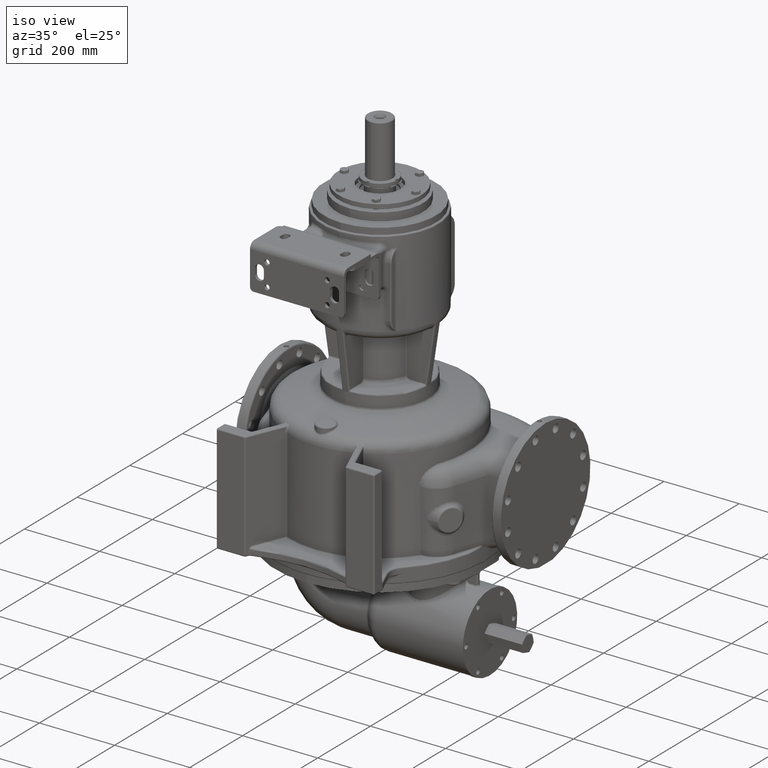
[diagram: clean part render]
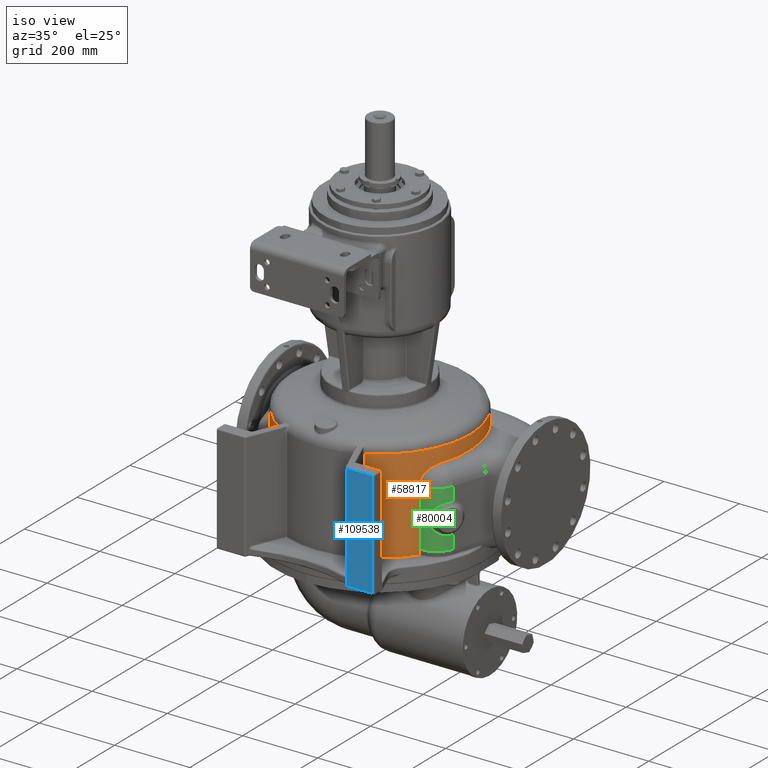
[diagram: same view with three faces highlighted in distinct colors, each labeled with its STEP entity id]
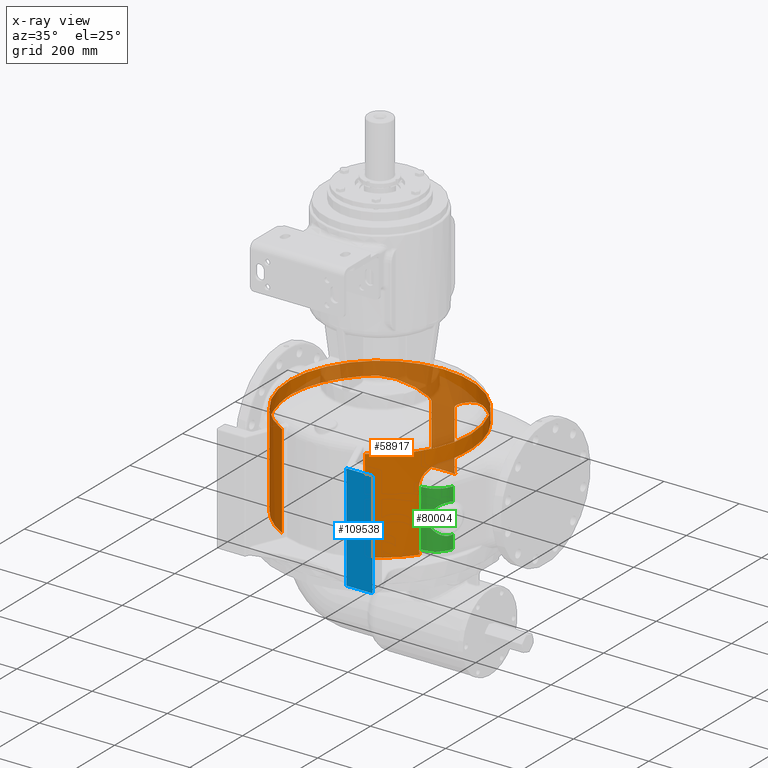
[diagram: x-ray of the same camera — body ghosted, the three highlighted faces saturated]
A machine part, iso view with three faces highlighted in distinct colors.
The next image is the same camera in x-ray (body ghosted, the three faces saturated) — at least one of them is partly hidden behind the body in this view.
Their STEP definitions:

[orange] entity #58917 — the highlighted cylindrical surface (partial cylindrical patch) has radius 241 mm, axis along (0, 0, -1).
#11765=CARTESIAN_POINT('',(0.E0,3.22E2,1.604801903606E2));
#11766=DIRECTION('',(0.E0,0.E0,1.E0));
#11767=DIRECTION('',(4.568249581991E-1,-8.895566072861E-1,0.E0));
#11768=AXIS2_PLACEMENT_3D('',#11765,#11766,#11767);
#12167=CARTESIAN_POINT('',(0.E0,3.22E2,1.604801903606E2));
#12168=DIRECTION('',(0.E0,0.E0,-1.E0));
#12169=DIRECTION('',(-4.568249581991E-1,-8.895566072861E-1,0.E0));
#12170=AXIS2_PLACEMENT_3D('',#12167,#12168,#12169);
#12230=CARTESIAN_POINT('',(0.E0,3.22E2,-8.85E1));
#12231=DIRECTION('',(0.E0,0.E0,-1.E0));
#12232=DIRECTION('',(8.311754890876E-1,-5.560101674790E-1,0.E0));
#12233=AXIS2_PLACEMENT_3D('',#12230,#12231,#12232);
#12235=DIRECTION('',(0.E0,0.E0,1.E0));
#12236=VECTOR('',#12235,2.489801903606E2);
#12237=CARTESIAN_POINT('',(1.100948149260E2,1.076168576441E2,-8.85E1));
#12238=LINE('',#12237,#12236);
#12239=DIRECTION('',(0.E0,0.E0,-1.E0));
#12240=VECTOR('',#12239,2.489801903606E2);
#12241=CARTESIAN_POINT('',(-1.100948149260E2,1.076168576441E2,
1.604801903606E2));
#12242=LINE('',#12241,#12240);
#12243=CARTESIAN_POINT('',(0.E0,3.22E2,-8.85E1));
#12244=DIRECTION('',(0.E0,0.E0,-1.E0));
#12245=DIRECTION('',(-4.568249581991E-1,-8.895566072861E-1,0.E0));
#12246=AXIS2_PLACEMENT_3D('',#12243,#12244,#12245);
#12248=CARTESIAN_POINT('',(-2.003132928701E2,1.880015496376E2,-8.85E1));
#12249=CARTESIAN_POINT('',(-2.002575136635E2,1.879181657133E2,
-8.819746973754E1));
#12250=CARTESIAN_POINT('',(-2.001498383637E2,1.877574276827E2,
-8.759098023191E1));
#12251=CARTESIAN_POINT('',(-1.999999568304E2,1.875342443269E2,
-8.667675755435E1));
#12252=CARTESIAN_POINT('',(-1.998618398948E2,1.873290544017E2,
-8.575875452378E1));
#12253=CARTESIAN_POINT('',(-1.997355301323E2,1.871418026083E2,
-8.483719843852E1));
#12254=CARTESIAN_POINT('',(-1.996210898351E2,1.869724733095E2,
-8.391246337651E1));
#12255=CARTESIAN_POINT('',(-1.995185667206E2,1.868210394198E2,
-8.298486875761E1));
#12256=CARTESIAN_POINT('',(-1.994280047944E2,1.866874786296E2,
-8.205474146815E1));
#12257=CARTESIAN_POINT('',(-1.993494421665E2,1.865717701584E2,
-8.112240392379E1));
#12258=CARTESIAN_POINT('',(-1.992829117300E2,1.864738957799E2,
-8.018817661974E1));
#12259=CARTESIAN_POINT('',(-1.992284409596E2,1.863938395333E2,
-7.925237854568E1));
#12260=CARTESIAN_POINT('',(-1.991860523405E2,1.863315883622E2,
-7.831531838695E1));
#12261=CARTESIAN_POINT('',(-1.991557638273E2,1.862871327914E2,
-7.737735681063E1));
#12262=CARTESIAN_POINT('',(-1.991375863496E2,1.862604632714E2,
-7.643869185598E1));
#12263=CARTESIAN_POINT('',(-1.991335484359E2,1.862545400847E2,
-7.581292252470E1));
#12264=CARTESIAN_POINT('',(-1.991335484211E2,1.862545400641E2,-7.55E1));
#12266=DIRECTION('',(0.E0,0.E0,1.E0));
#12267=VECTOR('',#12266,1.51E2);
#12268=CARTESIAN_POINT('',(-1.991335484211E2,1.862545400641E2,-7.55E1));
#12269=LINE('',#12268,#12267);
#12270=CARTESIAN_POINT('',(-1.991335484211E2,1.862545400641E2,7.55E1));
#12271=CARTESIAN_POINT('',(-1.991335484358E2,1.862545400846E2,
7.581901187559E1));
#12272=CARTESIAN_POINT('',(-1.991377449946E2,1.862606959750E2,
7.645695237945E1));
#12273=CARTESIAN_POINT('',(-1.991566364395E2,1.862884131657E2,
7.741386208815E1));
#12274=CARTESIAN_POINT('',(-1.991881140283E2,1.863346149442E2,
7.837002466514E1));
#12275=CARTESIAN_POINT('',(-1.992321660909E2,1.863993118227E2,
7.932523267884E1));
#12276=CARTESIAN_POINT('',(-1.992887730323E2,1.864825137377E2,
8.027910116290E1));
#12277=CARTESIAN_POINT('',(-1.993579107370E2,1.865842350407E2,
8.123130623059E1));
#12278=CARTESIAN_POINT('',(-1.994395494169E2,1.867044928031E2,
8.218150819327E1));
#12279=CARTESIAN_POINT('',(-1.995336535510E2,1.868433067181E2,
8.312936768627E1));
#12280=CARTESIAN_POINT('',(-1.996401818577E2,1.870006990480E2,
8.407454247821E1));
#12281=CARTESIAN_POINT('',(-1.997590870839E2,1.871766942980E2,
8.501668738573E1));
#12282=CARTESIAN_POINT('',(-1.998903158914E2,1.873713190273E2,
8.595545413978E1));
#12283=CARTESIAN_POINT('',(-2.000338086793E2,1.875846015590E2,
8.689049105033E1));
#12284=CARTESIAN_POINT('',(-2.001894994257E2,1.878165717114E2,
8.782144286959E1));
#12285=CARTESIAN_POINT('',(-2.003573155152E2,1.880672604984E2,
8.874795061932E1));
#12286=CARTESIAN_POINT('',(-2.005371775706E2,1.883366998266E2,
8.966965148998E1));
#12287=CARTESIAN_POINT('',(-2.007289992868E2,1.886249221838E2,
9.058617877503E1));
#12288=CARTESIAN_POINT('',(-2.009326872716E2,1.889319603268E2,
9.149716185623E1));
#12289=CARTESIAN_POINT('',(-2.011481409005E2,1.892578469745E2,
9.240222624467E1));
#12290=CARTESIAN_POINT('',(-2.013752521860E2,1.896026145102E2,
9.330099366972E1));
#12291=CARTESIAN_POINT('',(-2.016139056649E2,1.899662946967E2,
9.419308221553E1));
#12292=CARTESIAN_POINT('',(-2.018639783134E2,1.903489184162E2,
9.507810652058E1));
#12293=CARTESIAN_POINT('',(-2.021253394936E2,1.907505154445E2,
9.595567804012E1));
#12294=CARTESIAN_POINT('',(-2.023978509327E2,1.911711142599E2,
9.682540535581E1));
#12295=CARTESIAN_POINT('',(-2.026813667413E2,1.916107418968E2,
9.768689453692E1));
#12296=CARTESIAN_POINT('',(-2.029757334776E2,1.920694238591E2,
9.853974956447E1));
#12297=CARTESIAN_POINT('',(-2.032807902667E2,1.925471841052E2,
9.938357281636E1));
#12298=CARTESIAN_POINT('',(-2.035963689679E2,1.930440451018E2,
1.002179655858E2));
#12299=CARTESIAN_POINT('',(-2.039222943980E2,1.935600279586E2,
1.010425286381E2));
#12300=CARTESIAN_POINT('',(-2.042583846277E2,1.940951526762E2,
1.018568628350E2));
#12301=CARTESIAN_POINT('',(-2.046044513500E2,1.946494385133E2,
1.026605698018E2));
#12302=CARTESIAN_POINT('',(-2.049603003155E2,1.952229044681E2,
1.034532526095E2));
#12303=CARTESIAN_POINT('',(-2.053257318490E2,1.958155699093E2,
1.042345164946E2));
#12304=CARTESIAN_POINT('',(-2.057005414529E2,1.964274553699E2,
1.050039696056E2));
#12305=CARTESIAN_POINT('',(-2.060845204899E2,1.970585835072E2,
1.057612237487E2));
#12306=CARTESIAN_POINT('',(-2.064774569632E2,1.977089802664E2,
1.065058951522E2));
#12307=CARTESIAN_POINT('',(-2.068791363936E2,1.983786762650E2,
1.072376052304E2));
#12308=CARTESIAN_POINT('',(-2.072893428041E2,1.990677084289E2,
1.079559813487E2));
#12309=CARTESIAN_POINT('',(-2.077078597920E2,1.997761218672E2,
1.086606575333E2));
#12310=CARTESIAN_POINT('',(-2.081344717157E2,2.005039720507E2,
1.093512751640E2));
#12311=CARTESIAN_POINT('',(-2.085689651096E2,2.012513275138E2,
1.100274838004E2));
#12312=CARTESIAN_POINT('',(-2.090111301976E2,2.020182728930E2,
1.106889418695E2));
#12313=CARTESIAN_POINT('',(-2.094607623077E2,2.028049119863E2,
1.113353169436E2));
#12314=CARTESIAN_POINT('',(-2.099176633963E2,2.036113712103E2,
1.119662859654E2));
#12315=CARTESIAN_POINT('',(-2.103816439477E2,2.044378039666E2,
1.125815357222E2));
#12316=CARTESIAN_POINT('',(-2.108525250858E2,2.052843956995E2,
1.131807632488E2));
#12317=CARTESIAN_POINT('',(-2.113301407267E2,2.061513693873E2,
1.137636759044E2));
#12318=CARTESIAN_POINT('',(-2.118143399011E2,2.070389917566E2,
1.143299912863E2));
#12319=CARTESIAN_POINT('',(-2.123049892339E2,2.079475802645E2,
1.148794368996E2));
#12320=CARTESIAN_POINT('',(-2.128019756821E2,2.088775111163E2,
1.154117497508E2));
#12321=CARTESIAN_POINT('',(-2.133052094897E2,2.098292283487E2,
1.159266756633E2));
#12322=CARTESIAN_POINT('',(-2.138146271355E2,2.108032536600E2,
1.164239679409E2));
#12323=CARTESIAN_POINT('',(-2.143301943515E2,2.118001972324E2,
1.169033855762E2));
#12324=CARTESIAN_POINT('',(-2.148519096849E2,2.128207706038E2,
1.173646916459E2));
#12325=CARTESIAN_POINT('',(-2.153798079712E2,2.138658005743E2,
1.178076507805E2));
#12326=CARTESIAN_POINT('',(-2.159139624958E2,2.149362418016E2,
1.182320244945E2));
#12327=CARTESIAN_POINT('',(-2.164544891045E2,2.160331947499E2,
1.186375685388E2));
#12328=CARTESIAN_POINT('',(-2.170015466772E2,2.171579179934E2,
1.190240255854E2));
#12329=CARTESIAN_POINT('',(-2.175553387391E2,2.183118444792E2,
1.193911195285E2));
#12330=CARTESIAN_POINT('',(-2.181161104533E2,2.194965900238E2,
1.197385455572E2));
#12331=CARTESIAN_POINT('',(-2.186841438999E2,2.207139596729E2,
1.200659602653E2));
#12332=CARTESIAN_POINT('',(-2.192597453435E2,2.219659380464E2,
1.203729672960E2));
#12333=CARTESIAN_POINT('',(-2.198432255786E2,2.232546644693E2,
1.206591020973E2));
#12334=CARTESIAN_POINT('',(-2.204348660097E2,2.245823746232E2,
1.209238128740E2));
#12335=CARTESIAN_POINT('',(-2.210348671950E2,2.259512971285E2,
1.211664401754E2));
#12336=CARTESIAN_POINT('',(-2.216432730645E2,2.273634831826E2,
1.213861963581E2));
#12337=CARTESIAN_POINT('',(-2.222598655826E2,2.288205474653E2,
1.215821486476E2));
#12338=CARTESIAN_POINT('',(-2.228840260133E2,2.303232966300E2,
1.217532124874E2));
#12339=CARTESIAN_POINT('',(-2.235145762296E2,2.318712626578E2,
1.218981648382E2));
#12340=CARTESIAN_POINT('',(-2.241495984894E2,2.334621114321E2,
1.220156903817E2));
#12341=CARTESIAN_POINT('',(-2.247863730367E2,2.350912889079E2,
1.221044686531E2));
#12342=CARTESIAN_POINT('',(-2.254211539419E2,2.367511265457E2,
1.221633135159E2));
#12343=CARTESIAN_POINT('',(-2.260501406375E2,2.384331945740E2,
1.221913095694E2));
#12344=CARTESIAN_POINT('',(-2.264612520212E2,2.395581338215E2,
1.221891337428E2));
#12345=CARTESIAN_POINT('',(-2.266650870613E2,2.401224187736E2,
1.221828155979E2));
#12347=CARTESIAN_POINT('',(-2.266650870613E2,2.401224187736E2,
1.221828155979E2));
#12348=CARTESIAN_POINT('',(-2.270505198092E2,2.411894281878E2,
1.221708685829E2));
#12349=CARTESIAN_POINT('',(-2.278060321139E2,2.433281104347E2,
1.221520819180E2));
#12350=CARTESIAN_POINT('',(-2.288928773399E2,2.465486939004E2,
1.221394969539E2));
#12351=CARTESIAN_POINT('',(-2.299339395347E2,2.497834248853E2,
1.221426035950E2));
#12352=CARTESIAN_POINT('',(-2.309298721451E2,2.530344150515E2,
1.221613786662E2));
#12353=CARTESIAN_POINT('',(-2.318811015886E2,2.563035326070E2,
1.221956761828E2));
#12354=CARTESIAN_POINT('',(-2.327879192728E2,2.595926703512E2,
1.222452238106E2));
#12355=CARTESIAN_POINT('',(-2.336504242244E2,2.629035233954E2,
1.223096148889E2));
#12356=CARTESIAN_POINT('',(-2.344685251955E2,2.662375260781E2,
1.223882970766E2));
#12357=CARTESIAN_POINT('',(-2.352419372512E2,2.695957473225E2,
1.224805582551E2));
#12358=CARTESIAN_POINT('',(-2.359701871948E2,2.729787837231E2,
1.225855101509E2));
#12359=CARTESIAN_POINT('',(-2.366526267006E2,2.763866460828E2,
1.227020708522E2));
#12360=CARTESIAN_POINT('',(-2.372884547940E2,2.798186429538E2,
1.228289476128E2));
#12361=CARTESIAN_POINT('',(-2.378767511445E2,2.832732678176E2,
1.229646219314E2));
#12362=CARTESIAN_POINT('',(-2.384165212396E2,2.867480989843E2,
1.231073393503E2));
#12363=CARTESIAN_POINT('',(-2.389067535777E2,2.902397231165E2,
1.232551067507E2));
#12364=CARTESIAN_POINT('',(-2.393464878975E2,2.937436955619E2,
1.234057000140E2));
#12365=CARTESIAN_POINT('',(-2.397348919329E2,2.972545524280E2,
1.235566846391E2));
#12366=CARTESIAN_POINT('',(-2.400713418639E2,3.007658849443E2,
1.237054508736E2));
#12367=CARTESIAN_POINT('',(-2.403554996521E2,3.042704767209E2,
1.238492631749E2));
#12368=CARTESIAN_POINT('',(-2.405873805819E2,3.077605075397E2,
1.239853223325E2));
#12369=CARTESIAN_POINT('',(-2.407674032467E2,3.112278089979E2,
1.241108361518E2));
#12370=CARTESIAN_POINT('',(-2.408964157542E2,3.146641426727E2,
1.242230927058E2));
#12371=CARTESIAN_POINT('',(-2.409756967285E2,3.180614846593E2,
1.243195305906E2));
#12372=CARTESIAN_POINT('',(-2.410069290839E2,3.214123050472E2,
1.243977994752E2));
#12373=CARTESIAN_POINT('',(-2.409921562718E2,3.247097056329E2,
1.244558072574E2));
#12374=CARTESIAN_POINT('',(-2.409337096838E2,3.279476593721E2,
1.244917467224E2));
#12375=CARTESIAN_POINT('',(-2.408673744235E2,3.300625812463E2,
1.244999999860E2));
#12376=CARTESIAN_POINT('',(-2.408277804310E2,3.311093453496E2,1.245E2));
#12378=CARTESIAN_POINT('',(0.E0,3.22E2,1.245E2));
#12379=DIRECTION('',(0.E0,0.E0,-1.E0));
#12380=DIRECTION('',(-9.992853959791E-1,3.779811348368E-2,0.E0));
#12381=AXIS2_PLACEMENT_3D('',#12378,#12379,#12380);
#12383=CARTESIAN_POINT('',(-1.710977906892E2,4.917249127891E2,1.245E2));
#12384=CARTESIAN_POINT('',(-1.702669834301E2,4.925624402993E2,
1.244999999804E2));
#12385=CARTESIAN_POINT('',(-1.685930692082E2,4.942252950152E2,
1.244999559565E2));
#12386=CARTESIAN_POINT('',(-1.660458421376E2,4.966824362962E2,
1.244997350915E2));
#12387=CARTESIAN_POINT('',(-1.634628025132E2,4.991019125192E2,
1.244993311097E2));
#12388=CARTESIAN_POINT('',(-1.608445268423E2,5.014831841157E2,
1.244987091252E2));
#12389=CARTESIAN_POINT('',(-1.581915683449E2,5.038257486400E2,
1.244978265657E2));
#12390=CARTESIAN_POINT('',(-1.555045157834E2,5.061290870181E2,
1.244966311915E2));
#12391=CARTESIAN_POINT('',(-1.527839423880E2,5.083927090775E2,
1.244950587553E2));
#12392=CARTESIAN_POINT('',(-1.500304610009E2,5.106161066078E2,
1.244930299971E2));
#12393=CARTESIAN_POINT('',(-1.481732752606E2,5.120712288141E2,
1.244913078600E2));
#12394=CARTESIAN_POINT('',(-1.472393991112E2,5.127919268454E2,
1.244903339889E2));
#12396=CARTESIAN_POINT('',(-1.472393991112E2,5.127919268454E2,
1.244903339889E2));
#12397=CARTESIAN_POINT('',(-1.472116676269E2,5.128133279978E2,
1.244903050695E2));
#12398=CARTESIAN_POINT('',(-1.471533345847E2,5.128583260105E2,
1.244904082603E2));
#12399=CARTESIAN_POINT('',(-1.470570377161E2,5.129325352430E2,
1.244902910321E2));
#12400=CARTESIAN_POINT('',(-1.469524672768E2,5.130130326092E2,
1.244900807100E2));
#12401=CARTESIAN_POINT('',(-1.468393864259E2,5.130999788577E2,
1.244897201553E2));
#12402=CARTESIAN_POINT('',(-1.467169718507E2,5.131939819927E2,
1.244891552295E2));
#12403=CARTESIAN_POINT('',(-1.465844321362E2,5.132956201933E2,
1.244883443278E2));
#12404=CARTESIAN_POINT('',(-1.464408639021E2,5.134055515474E2,
1.244872367144E2));
#12405=CARTESIAN_POINT('',(-1.462852773845E2,5.135244930807E2,
1.244857717142E2));
#12406=CARTESIAN_POINT('',(-1.461165660719E2,5.136532425193E2,
1.244838703304E2));
#12407=CARTESIAN_POINT('',(-1.459335067525E2,5.137926764026E2,
1.244814377591E2));
#12408=CARTESIAN_POINT('',(-1.457347463325E2,5.139437579706E2,
1.244783623137E2));
#12409=CARTESIAN_POINT('',(-1.455187827371E2,5.141075491203E2,
1.244745107420E2));
#12410=CARTESIAN_POINT('',(-1.452839342354E2,5.142852303432E2,
1.244697213572E2));
#12411=CARTESIAN_POINT('',(-1.450283409754E2,5.144780960912E2,
1.244637999093E2));
#12412=CARTESIAN_POINT('',(-1.447498490012E2,5.146876360104E2,
1.244565084393E2));
#12413=CARTESIAN_POINT('',(-1.444462903244E2,5.149153231767E2,
1.244475713508E2));
#12414=CARTESIAN_POINT('',(-1.441144162217E2,5.151633915246E2,
1.244366128469E2));
#12415=CARTESIAN_POINT('',(-1.437526792649E2,5.154327951313E2,
1.244233024819E2));
#12416=CARTESIAN_POINT('',(-1.433503572861E2,5.157311334084E2,
1.244067137698E2));
#12417=CARTESIAN_POINT('',(-1.429985525983E2,5.159908977837E2,
1.243906710725E2));
#12418=CARTESIAN_POINT('',(-1.426886964546E2,5.162188966673E2,
1.243754500287E2));
#12419=CARTESIAN_POINT('',(-1.424126912785E2,5.164213467701E2,
1.243610100635E2));
#12420=CARTESIAN_POINT('',(-1.421653537926E2,5.166022616797E2,
1.243473722586E2));
#12421=CARTESIAN_POINT('',(-1.419425416040E2,5.167648266731E2,
1.243345223991E2));
#12422=CARTESIAN_POINT('',(-1.417410031622E2,5.169115356906E2,
1.243224405622E2));
#12423=CARTESIAN_POINT('',(-1.415580899503E2,5.170444119110E2,
1.243110989569E2));
#12424=CARTESIAN_POINT('',(-1.413916169248E2,5.171651184901E2,
1.243004662054E2));
#12425=CARTESIAN_POINT('',(-1.412397552040E2,5.172750425120E2,
1.242905086643E2));
#12426=CARTESIAN_POINT('',(-1.411009321176E2,5.173753717092E2,
1.242811942171E2));
#12427=CARTESIAN_POINT('',(-1.409738774341E2,5.174670647347E2,
1.242724842196E2));
#12428=CARTESIAN_POINT('',(-1.408571810450E2,5.175511717916E2,
1.242643452050E2));
#12429=CARTESIAN_POINT('',(-1.407507307469E2,5.176278026883E2,
1.242567635747E2));
#12430=CARTESIAN_POINT('',(-1.406837789379E2,5.176759460660E2,
1.242520048782E2));
#12431=CARTESIAN_POINT('',(-1.406515476556E2,5.176991111163E2,
1.242496149076E2));
#12433=CARTESIAN_POINT('',(-1.406515476556E2,5.176991111163E2,
1.242496149076E2));
#12434=CARTESIAN_POINT('',(-1.400593283819E2,5.181247470304E2,
1.242057032924E2));
#12435=CARTESIAN_POINT('',(-1.388601318407E2,5.189784706849E2,
1.241059835071E2));
#12436=CARTESIAN_POINT('',(-1.370170917814E2,5.202650535237E2,
1.239200096114E2));
#12437=CARTESIAN_POINT('',(-1.351279275417E2,5.215575625400E2,
1.236967339882E2));
#12438=CARTESIAN_POINT('',(-1.331928177225E2,5.228544595013E2,
1.234354671115E2));
#12439=CARTESIAN_POINT('',(-1.312109096419E2,5.241548974621E2,
1.231354267466E2));
#12440=CARTESIAN_POINT('',(-1.291818372665E2,5.254576710246E2,
1.227959025151E2));
#12441=CARTESIAN_POINT('',(-1.271051287590E2,5.267616271374E2,
1.224161912937E2));
#12442=CARTESIAN_POINT('',(-1.249804390381E2,5.280655117138E2,
1.219956295663E2));
#12443=CARTESIAN_POINT('',(-1.228074794142E2,5.293680220635E2,
1.215335877118E2));
#12444=CARTESIAN_POINT('',(-1.205860539164E2,5.306677887482E2,
1.210294789411E2));
#12445=CARTESIAN_POINT('',(-1.183160610687E2,5.319633811732E2,
1.204827634079E2));
#12446=CARTESIAN_POINT('',(-1.159975084789E2,5.332533058325E2,
1.198929544667E2));
#12447=CARTESIAN_POINT('',(-1.136305252411E2,5.345360071224E2,
1.192596247558E2));
#12448=CARTESIAN_POINT('',(-1.112153772546E2,5.358098676308E2,
1.185824129651E2));
#12449=CARTESIAN_POINT('',(-1.087524841644E2,5.370732089238E2,
1.178610310728E2));
#12450=CARTESIAN_POINT('',(-1.062424394556E2,5.383242922127E2,
1.170952724345E2));
#12451=CARTESIAN_POINT('',(-1.036860337111E2,5.395613192235E2,
1.162850207671E2));
#12452=CARTESIAN_POINT('',(-1.010842822799E2,5.407824329961E2,
1.154302604109E2));
#12453=CARTESIAN_POINT('',(-9.843845902942E1,5.419857183017E2,
1.145310884702E2));
#12454=CARTESIAN_POINT('',(-9.575013734912E1,5.431692017688E2,
1.135877293218E2));
#12455=CARTESIAN_POINT('',(-9.302124135511E1,5.443308511784E2,
1.126005526487E2));
#12456=CARTESIAN_POINT('',(-9.025411089074E1,5.454685734609E2,
1.115700965603E2));
#12457=CARTESIAN_POINT('',(-8.745158428656E1,5.465802111541E2,
1.104970976970E2));
#12458=CARTESIAN_POINT('',(-8.461710631246E1,5.476635361894E2,
1.093825318154E2));
#12459=CARTESIAN_POINT('',(-8.175486942724E1,5.487162404061E2,
1.082276691763E2));
#12460=CARTESIAN_POINT('',(-7.886999932008E1,5.497359219587E2,
1.070341509248E2));
#12461=CARTESIAN_POINT('',(-7.596880098136E1,5.507200660819E2,
1.058040959913E2));
#12462=CARTESIAN_POINT('',(-7.305907930723E1,5.516660208440E2,
1.045402490048E2));
#12463=CARTESIAN_POINT('',(-7.015054965239E1,5.525709689885E2,
1.032461827697E2));
#12464=CARTESIAN_POINT('',(-6.725534608813E1,5.534318999726E2,
1.019265692553E2));
#12465=CARTESIAN_POINT('',(-6.438858861138E1,5.542455984365E2,
1.005875164515E2));
#12466=CARTESIAN_POINT('',(-6.156892301146E1,5.550086712376E2,
9.923694939993E1));
#12467=CARTESIAN_POINT('',(-5.881882216299E1,5.557176553564E2,
9.788495386258E1));
#12468=CARTESIAN_POINT('',(-5.616420560783E1,5.563692792153E2,
9.654387234374E1));
#12469=CARTESIAN_POINT('',(-5.363306943332E1,5.569608788135E2,
9.522796583123E1));
#12470=CARTESIAN_POINT('',(-5.125263819085E1,5.574909911341E2,
9.395229965056E1));
#12471=CARTESIAN_POINT('',(-4.904568594996E1,5.579598970491E2,
9.273102557727E1));
#12472=CARTESIAN_POINT('',(-4.702719869432E1,5.583698793036E2,
9.157554021460E1));
#12473=CARTESIAN_POINT('',(-4.520253931006E1,5.587250731058E2,
9.049312508266E1));
#12474=CARTESIAN_POINT('',(-4.356791131207E1,5.590309163917E2,
8.948660311034E1));
#12475=CARTESIAN_POINT('',(-4.211258110144E1,5.592934356656E2,
8.855500566346E1));
#12476=CARTESIAN_POINT('',(-4.082172525595E1,5.595186125597E2,
8.769474695031E1));
#12477=CARTESIAN_POINT('',(-3.967873736099E1,5.597119947808E2,
8.690065542132E1));
#12478=CARTESIAN_POINT('',(-3.866702400400E1,5.598784776948E2,
8.616694624703E1));
#12479=CARTESIAN_POINT('',(-3.777097503310E1,5.600222589225E2,
8.548776892319E1));
#12480=CARTESIAN_POINT('',(-3.697637095979E1,5.601468845743E2,
8.485749973682E1));
#12481=CARTESIAN_POINT('',(-3.627063833597E1,5.602553069943E2,
8.427098325465E1));
#12482=CARTESIAN_POINT('',(-3.564274839340E1,5.603499816695E2,
8.372353989440E1));
#12483=CARTESIAN_POINT('',(-3.508312148422E1,5.604329453872E2,
8.321098548530E1));
#12484=CARTESIAN_POINT('',(-3.458348192582E1,5.605058877169E2,
8.272961273093E1));
#12485=CARTESIAN_POINT('',(-3.413668910285E1,5.605702140906E2,
8.227614306498E1));
#12486=CARTESIAN_POINT('',(-3.373658251780E1,5.606270974471E2,
8.184767806651E1));
#12487=CARTESIAN_POINT('',(-3.337784389682E1,5.606775202305E2,
8.144165336714E1));
#12488=CARTESIAN_POINT('',(-3.305587581563E1,5.607223085644E2,
8.105579517161E1));
#12489=CARTESIAN_POINT('',(-3.276669767152E1,5.607621598292E2,
8.068808166631E1));
#12490=CARTESIAN_POINT('',(-3.250685699891E1,5.607976649565E2,
8.033670897721E1));
#12491=CARTESIAN_POINT('',(-3.227335414574E1,5.608293264923E2,
8.000006123159E1));
#12492=CARTESIAN_POINT('',(-3.206357893166E1,5.608575732040E2,
7.967668498445E1));
#12493=CARTESIAN_POINT('',(-3.187525723998E1,5.608827719559E2,
7.936526719518E1));
#12494=CARTESIAN_POINT('',(-3.170640592655E1,5.609052374013E2,
7.906461614894E1));
#12495=CARTESIAN_POINT('',(-3.155529490083E1,5.609252398990E2,
7.877364516348E1));
#12496=CARTESIAN_POINT('',(-3.142041503049E1,5.609430120233E2,
7.849135841335E1));
#12497=CARTESIAN_POINT('',(-3.130045104204E1,5.609587539212E2,
7.821683861282E1));
#12498=CARTESIAN_POINT('',(-3.119425873531E1,5.609726377205E2,
7.794923650071E1));
#12499=CARTESIAN_POINT('',(-3.110084556447E1,5.609848111947E2,
7.768776119394E1));
#12500=CARTESIAN_POINT('',(-3.101935475534E1,5.609954007301E2,
7.743167305121E1));
#12501=CARTESIAN_POINT('',(-3.094905173963E1,5.610045138042E2,
7.718027764665E1));
#12502=CARTESIAN_POINT('',(-3.088931124784E1,5.610122412280E2,
7.693291487175E1));
#12503=CARTESIAN_POINT('',(-3.083960860465E1,5.610186587217E2,
7.668895350180E1));
#12504=CARTESIAN_POINT('',(-3.079951264624E1,5.610238281865E2,
7.644779338288E1));
#12505=CARTESIAN_POINT('',(-3.076867709707E1,5.610277990934E2,
7.620883460336E1));
#12506=CARTESIAN_POINT('',(-3.074684312559E1,5.610306083665E2,
7.597156354863E1));
#12507=CARTESIAN_POINT('',(-3.073381804827E1,5.610322832784E2,
7.573533265586E1));
#12508=CARTESIAN_POINT('',(-3.073094160318E1,5.610326530586E2,
7.557834966479E1));
#12509=CARTESIAN_POINT('',(-3.073094158193E1,5.610326530612E2,
7.550000000001E1));
#12511=DIRECTION('',(0.E0,0.E0,-1.E0));
#12512=VECTOR('',#12511,1.51E2);
#12513=CARTESIAN_POINT('',(-3.073094158193E1,5.610326530612E2,
7.550000000001E1));
#12514=LINE('',#12513,#12512);
#12515=CARTESIAN_POINT('',(-3.073094158193E1,5.610326530612E2,-7.55E1));
#12516=CARTESIAN_POINT('',(-3.073094159847E1,5.610326530591E2,
-7.557738078219E1));
#12517=CARTESIAN_POINT('',(-3.073374740298E1,5.610322923596E2,
-7.573241091588E1));
#12518=CARTESIAN_POINT('',(-3.074644813775E1,5.610306591639E2,
-7.596566243706E1));
#12519=CARTESIAN_POINT('',(-3.076773482894E1,5.610279203605E2,
-7.619991845907E1));
#12520=CARTESIAN_POINT('',(-3.079779022088E1,5.610240500799E2,
-7.643579550568E1));
#12521=CARTESIAN_POINT('',(-3.083686036731E1,5.610190132277E2,
-7.667379113281E1));
#12522=CARTESIAN_POINT('',(-3.088527418693E1,5.610127628239E2,
-7.691448199988E1));
#12523=CARTESIAN_POINT('',(-3.094344077923E1,5.610052401530E2,
-7.715844400287E1));
#12524=CARTESIAN_POINT('',(-3.101185776527E1,5.609963734325E2,
-7.740628287143E1));
#12525=CARTESIAN_POINT('',(-3.109111763495E1,5.609860766661E2,
-7.765863109590E1));
#12526=CARTESIAN_POINT('',(-3.118191599748E1,5.609742481618E2,
-7.791615371140E1));
#12527=CARTESIAN_POINT('',(-3.128506304165E1,5.609607685266E2,
-7.817955719554E1));
#12528=CARTESIAN_POINT('',(-3.140149640904E1,5.609454983402E2,
-7.844959625741E1));
#12529=CARTESIAN_POINT('',(-3.153229554098E1,5.609282754686E2,
-7.872707982522E1));
#12530=CARTESIAN_POINT('',(-3.167869998667E1,5.609089116469E2,
-7.901288074140E1));
#12531=CARTESIAN_POINT('',(-3.184212837670E1,5.608871887149E2,
-7.930794257294E1));
#12532=CARTESIAN_POINT('',(-3.202420912389E1,5.608628529375E2,
-7.961329973081E1));
#12533=CARTESIAN_POINT('',(-3.222679137581E1,5.608356115994E2,
-7.993006469343E1));
#12534=CARTESIAN_POINT('',(-3.245203404838E1,5.608051183694E2,
-8.025951654298E1));
#12535=CARTESIAN_POINT('',(-3.270228725171E1,5.607709865420E2,
-8.060291161179E1));
#12536=CARTESIAN_POINT('',(-3.298057929807E1,5.607327176187E2,
-8.096205060906E1));
#12537=CARTESIAN_POINT('',(-3.328940708386E1,5.606898645595E2,
-8.133777734894E1));
#12538=CARTESIAN_POINT('',(-3.351896239039E1,5.606576921366E2,
-8.160157609976E1));
#12539=CARTESIAN_POINT('',(-3.363965349060E1,5.606406790827E2,
-8.173636363636E1));
#12541=CARTESIAN_POINT('',(-3.363965349060E1,5.606406790827E2,
-8.173636363636E1));
#12542=CARTESIAN_POINT('',(-3.366127433191E1,5.606376313306E2,
-8.176050977274E1));
#12543=CARTESIAN_POINT('',(-3.370161386904E1,5.606319389541E2,
-8.180794793775E1));
#12544=CARTESIAN_POINT('',(-3.375359928922E1,5.606245907724E2,
-8.187574954598E1));
#12545=CARTESIAN_POINT('',(-3.379838135080E1,5.606182516066E2,
-8.194087627005E1));
#12546=CARTESIAN_POINT('',(-3.383669777570E1,5.606128209181E2,
-8.200348880233E1));
#12547=CARTESIAN_POINT('',(-3.386931461190E1,5.606081931365E2,
-8.206393213484E1));
#12548=CARTESIAN_POINT('',(-3.389682873087E1,5.606042858284E2,
-8.212247161665E1));
#12549=CARTESIAN_POINT('',(-3.391974945311E1,5.606010283774E2,
-8.217937805248E1));
#12550=CARTESIAN_POINT('',(-3.393849195094E1,5.605983630684E2,
-8.223490635036E1));
#12551=CARTESIAN_POINT('',(-3.395339091570E1,5.605962432704E2,
-8.228929155647E1));
#12552=CARTESIAN_POINT('',(-3.396471614201E1,5.605946313062E2,
-8.234279485821E1));
#12553=CARTESIAN_POINT('',(-3.397265994886E1,5.605935003074E2,
-8.239559612006E1));
#12554=CARTESIAN_POINT('',(-3.397737188469E1,5.605928293192E2,
-8.244800463533E1));
#12555=CARTESIAN_POINT('',(-3.397840441722E1,5.605926822710E2,
-8.248270884478E1));
#12556=CARTESIAN_POINT('',(-3.397840443141E1,5.605926822690E2,-8.25E1));
#12558=CARTESIAN_POINT('',(0.E0,3.22E2,-8.25E1));
#12559=DIRECTION('',(0.E0,0.E0,-1.E0));
#12560=DIRECTION('',(-1.409892300059E-1,9.900111297467E-1,0.E0));
#12561=AXIS2_PLACEMENT_3D('',#12558,#12559,#12560);
#12563=CARTESIAN_POINT('',(3.397840443141E1,5.605926822690E2,-8.25E1));
#12564=CARTESIAN_POINT('',(3.397840441634E1,5.605926822711E2,
-8.248271307592E1));
#12565=CARTESIAN_POINT('',(3.397737246857E1,5.605928292361E2,
-8.244801467070E1));
#12566=CARTESIAN_POINT('',(3.397266072284E1,5.605935001972E2,
-8.239560170673E1));
#12567=CARTESIAN_POINT('',(3.396471681623E1,5.605946312102E2,
-8.234279838082E1));
#12568=CARTESIAN_POINT('',(3.395339128165E1,5.605962432183E2,
-8.228929268203E1));
#12569=CARTESIAN_POINT('',(3.393849130427E1,5.605983631604E2,
-8.223490390267E1));
#12570=CARTESIAN_POINT('',(3.391974752527E1,5.606010286515E2,
-8.217937256995E1));
#12571=CARTESIAN_POINT('',(3.389682503726E1,5.606042863532E2,
-8.212246288818E1));
#12572=CARTESIAN_POINT('',(3.386930875668E1,5.606081939677E2,
-8.206392040101E1));
#12573=CARTESIAN_POINT('',(3.383669039181E1,5.606128219653E2,
-8.200347584500E1));
#12574=CARTESIAN_POINT('',(3.379837076652E1,5.606182531060E2,
-8.194085986043E1));
#12575=CARTESIAN_POINT('',(3.375358790911E1,5.606245923819E2,
-8.187573415725E1));
#12576=CARTESIAN_POINT('',(3.370161012684E1,5.606319394820E2,
-8.180794364055E1));
#12577=CARTESIAN_POINT('',(3.366127311030E1,5.606376315028E2,
-8.176050841471E1));
#12578=CARTESIAN_POINT('',(3.363965349060E1,5.606406790827E2,
-8.173636363636E1));
#12580=CARTESIAN_POINT('',(3.363965349060E1,5.606406790827E2,
-8.173636363636E1));
#12581=CARTESIAN_POINT('',(3.351894946560E1,5.606576939589E2,
-8.160156164838E1));
#12582=CARTESIAN_POINT('',(3.328937326678E1,5.606898692923E2,
-8.133773828519E1));
#12583=CARTESIAN_POINT('',(3.298051381425E1,5.607327266696E2,
-8.096196910015E1));
#12584=CARTESIAN_POINT('',(3.270223305627E1,5.607709939580E2,
-8.060283946558E1));
#12585=CARTESIAN_POINT('',(3.245198993748E1,5.608051243619E2,
-8.025945437250E1));
#12586=CARTESIAN_POINT('',(3.222675289329E1,5.608356167899E2,
-7.993000682022E1));
#12587=CARTESIAN_POINT('',(3.202417770361E1,5.608628571483E2,
-7.961324911695E1));
#12588=CARTESIAN_POINT('',(3.184210162996E1,5.608871922790E2,
-7.930789626403E1));
#12589=CARTESIAN_POINT('',(3.167867753341E1,5.609089146232E2,
-7.901283870242E1));
#12590=CARTESIAN_POINT('',(3.153227659629E1,5.609282779682E2,
-7.872704130929E1));
#12591=CARTESIAN_POINT('',(3.140148041579E1,5.609455004415E2,
-7.844956076969E1));
#12592=CARTESIAN_POINT('',(3.128504950557E1,5.609607702985E2,
-7.817952425441E1));
#12593=CARTESIAN_POINT('',(3.118190453133E1,5.609742496576E2,
-7.791612291189E1));
#12594=CARTESIAN_POINT('',(3.109110793337E1,5.609860779280E2,
-7.765860204711E1));
#12595=CARTESIAN_POINT('',(3.101184963501E1,5.609963744874E2,
-7.740625537614E1));
#12596=CARTESIAN_POINT('',(3.094343402961E1,5.610052410267E2,
-7.715841780306E1));
#12597=CARTESIAN_POINT('',(3.088526864315E1,5.610127635402E2,
-7.691445677752E1));
#12598=CARTESIAN_POINT('',(3.083685593943E1,5.610190137989E2,
-7.667376687118E1));
#12599=CARTESIAN_POINT('',(3.079778677788E1,5.610240505235E2,
-7.643577194088E1));
#12600=CARTESIAN_POINT('',(3.076773228517E1,5.610279206879E2,
-7.619989511568E1));
#12601=CARTESIAN_POINT('',(3.074644667929E1,5.610306593515E2,
-7.596564244222E1));
#12602=CARTESIAN_POINT('',(3.073374684622E1,5.610322924311E2,
-7.573239291440E1));
#12603=CARTESIAN_POINT('',(3.073094160151E1,5.610326530588E2,
-7.557737375968E1));
#12604=CARTESIAN_POINT('',(3.073094158193E1,5.610326530612E2,
-7.550000000001E1));
#12606=DIRECTION('',(0.E0,0.E0,1.E0));
#12607=VECTOR('',#12606,1.51E2);
#12608=CARTESIAN_POINT('',(3.073094158193E1,5.610326530612E2,
-7.550000000001E1));
#12609=LINE('',#12608,#12607);
#12610=CARTESIAN_POINT('',(3.073094158193E1,5.610326530612E2,7.55E1));
#12611=CARTESIAN_POINT('',(3.073094160135E1,5.610326530588E2,7.557835176580E1));
#12612=CARTESIAN_POINT('',(3.073381822029E1,5.610322832563E2,7.573533762088E1));
#12613=CARTESIAN_POINT('',(3.074684340028E1,5.610306083312E2,7.597156676962E1));
#12614=CARTESIAN_POINT('',(3.076867730344E1,5.610277990669E2,7.620883611828E1));
#12615=CARTESIAN_POINT('',(3.079951239650E1,5.610238282187E2,7.644779144763E1));
#12616=CARTESIAN_POINT('',(3.083960769601E1,5.610186588388E2,7.668894845024E1));
#12617=CARTESIAN_POINT('',(3.088930947474E1,5.610122414570E2,7.693290678888E1));
#12618=CARTESIAN_POINT('',(3.094904884757E1,5.610045141786E2,7.718026642048E1));
#12619=CARTESIAN_POINT('',(3.101935048786E1,5.609954012838E2,7.743165864746E1));
#12620=CARTESIAN_POINT('',(3.110083973547E1,5.609848119530E2,7.768774381445E1));
#12621=CARTESIAN_POINT('',(3.119425106534E1,5.609726387214E2,7.794921604997E1));
#12622=CARTESIAN_POINT('',(3.130044114520E1,5.609587552172E2,7.821681481286E1));
#12623=CARTESIAN_POINT('',(3.142040263330E1,5.609430136530E2,7.849133132697E1));
#12624=CARTESIAN_POINT('',(3.155527967106E1,5.609252419099E2,7.877361472998E1));
#12625=CARTESIAN_POINT('',(3.170638756089E1,5.609052398379E2,7.906458238736E1));
#12626=CARTESIAN_POINT('',(3.187523547214E1,5.608827748596E2,7.936523016879E1));
#12627=CARTESIAN_POINT('',(3.206355355678E1,5.608575766092E2,7.967664483030E1));
#12628=CARTESIAN_POINT('',(3.227332499161E1,5.608293304307E2,8.000001812259E1));
#12629=CARTESIAN_POINT('',(3.250682394701E1,5.607976694544E2,8.033666314837E1));
#12630=CARTESIAN_POINT('',(3.276666074056E1,5.607621648959E2,8.068803350569E1));
#12631=CARTESIAN_POINT('',(3.305583503533E1,5.607223142096E2,8.105574503760E1));
#12632=CARTESIAN_POINT('',(3.337779947343E1,5.606775264413E2,8.144160178017E1));
#12633=CARTESIAN_POINT('',(3.373653494505E1,5.606271041712E2,8.184762579318E1));
#12634=CARTESIAN_POINT('',(3.413663874048E1,5.605702212953E2,8.227609064654E1));
#12635=CARTESIAN_POINT('',(3.458342954458E1,5.605058953111E2,8.272956105542E1));
#12636=CARTESIAN_POINT('',(3.508306841533E1,5.604329531960E2,8.321093588424E1));
#12637=CARTESIAN_POINT('',(3.564269748348E1,5.603499892862E2,8.372349493765E1));
#12638=CARTESIAN_POINT('',(3.627059424897E1,5.602553137141E2,8.427094675309E1));
#12639=CARTESIAN_POINT('',(3.697633450262E1,5.601468902394E2,8.485747174310E1));
#12640=CARTESIAN_POINT('',(3.777094881093E1,5.600222631152E2,8.548775096155E1));
#12641=CARTESIAN_POINT('',(3.866704166776E1,5.598784748947E2,8.616696258197E1));
#12642=CARTESIAN_POINT('',(3.967881804722E1,5.597119814401E2,8.690071704987E1));
#12643=CARTESIAN_POINT('',(4.082192294711E1,5.595185788519E2,8.769488483446E1));
#12644=CARTESIAN_POINT('',(4.211295523450E1,5.592933696274E2,8.855525584292E1));
#12645=CARTESIAN_POINT('',(4.356846183955E1,5.590308156036E2,8.948695270659E1));
#12646=CARTESIAN_POINT('',(4.520326302510E1,5.587249353031E2,9.049356672247E1));
#12647=CARTESIAN_POINT('',(4.702803015742E1,5.583697140326E2,9.157602990072E1));
#12648=CARTESIAN_POINT('',(4.904651409465E1,5.579597247732E2,9.273149352976E1));
#12649=CARTESIAN_POINT('',(5.125340651361E1,5.574908237387E2,9.395271891829E1));
#12650=CARTESIAN_POINT('',(5.363380327864E1,5.569607112200E2,9.522835385013E1));
#12651=CARTESIAN_POINT('',(5.616491415899E1,5.563691093036E2,9.654423622497E1));
#12652=CARTESIAN_POINT('',(5.881949769746E1,5.557174852423E2,9.788529137080E1));
#12653=CARTESIAN_POINT('',(6.156957764370E1,5.550084981773E2,9.923726789178E1));
#12654=CARTESIAN_POINT('',(6.438921882512E1,5.542454236211E2,1.005878153245E2));
#12655=CARTESIAN_POINT('',(6.725595667577E1,5.534317224582E2,1.019268516712E2));
#12656=CARTESIAN_POINT('',(7.015114046540E1,5.525707891481E2,1.032464494099E2));
#12657=CARTESIAN_POINT('',(7.305964810596E1,5.516658398092E2,1.045404995438E2));
#12658=CARTESIAN_POINT('',(7.596934719201E1,5.507198845605E2,1.058043307974E2));
#12659=CARTESIAN_POINT('',(7.887052152994E1,5.497357409991E2,1.070343699729E2));
#12660=CARTESIAN_POINT('',(8.175536662424E1,5.487160610044E2,1.082278725947E2));
#12661=CARTESIAN_POINT('',(8.461757813581E1,5.476633591569E2,1.093827199818E2));
#12662=CARTESIAN_POINT('',(8.745203028191E1,5.465800373686E2,1.104972709390E2));
#12663=CARTESIAN_POINT('',(9.025453104079E1,5.454684036566E2,1.115702553659E2));
#12664=CARTESIAN_POINT('',(9.302163581554E1,5.443306860251E2,1.126006975604E2));
#12665=CARTESIAN_POINT('',(9.575050632183E1,5.431690419171E2,1.135878608918E2));
#12666=CARTESIAN_POINT('',(9.843880298372E1,5.419855642787E2,1.145312073383E2));
#12667=CARTESIAN_POINT('',(1.010846016609E2,5.407822853224E2,1.154303672007E2));
#12668=CARTESIAN_POINT('',(1.036863290430E2,5.395611783662E2,1.162851161234E2));
#12669=CARTESIAN_POINT('',(1.062427114101E2,5.383241585443E2,1.170953570421E2));
#12670=CARTESIAN_POINT('',(1.087527333332E2,5.370730828289E2,1.178611055842E2));
#12671=CARTESIAN_POINT('',(1.112156043058E2,5.358097494292E2,1.185824780502E2));
#12672=CARTESIAN_POINT('',(1.136307309174E2,5.345358970637E2,1.192596810972E2));
#12673=CARTESIAN_POINT('',(1.159976934410E2,5.332532041785E2,1.198930027161E2));
#12674=CARTESIAN_POINT('',(1.183162260343E2,5.319632881245E2,1.204828042248E2));
#12675=CARTESIAN_POINT('',(1.205861996479E2,5.306677044457E2,1.210295129855E2));
#12676=CARTESIAN_POINT('',(1.228076065391E2,5.293679466946E2,1.215336156033E2));
#12677=CARTESIAN_POINT('',(1.249805483559E2,5.280654453313E2,1.219956519521E2));
#12678=CARTESIAN_POINT('',(1.271052207968E2,5.267615699285E2,1.224162087556E2));
#12679=CARTESIAN_POINT('',(1.291819130581E2,5.254576228293E2,1.227959157199E2));
#12680=CARTESIAN_POINT('',(1.312109694473E2,5.241548585697E2,1.231354362021E2));
#12681=CARTESIAN_POINT('',(1.331928620540E2,5.228544300437E2,1.234354733962E2));
#12682=CARTESIAN_POINT('',(1.351279596185E2,5.215575407530E2,1.236967379727E2));
#12683=CARTESIAN_POINT('',(1.370171066646E2,5.202650431582E2,1.239200111448E2));
#12684=CARTESIAN_POINT('',(1.388601331611E2,5.189784697155E2,1.241059835796E2));
#12685=CARTESIAN_POINT('',(1.400593279053E2,5.181247473727E2,1.242057032562E2));
#12686=CARTESIAN_POINT('',(1.406515476556E2,5.176991111163E2,1.242496149076E2));
#12688=CARTESIAN_POINT('',(1.406515476556E2,5.176991111163E2,1.242496149076E2));
#12689=CARTESIAN_POINT('',(1.406796670600E2,5.176789013272E2,1.242516999541E2));
#12690=CARTESIAN_POINT('',(1.407378306830E2,5.176370799101E2,1.242558336346E2));
#12691=CARTESIAN_POINT('',(1.408293364269E2,5.175712213202E2,1.242623782879E2));
#12692=CARTESIAN_POINT('',(1.409295508673E2,5.174990209437E2,1.242693997223E2));
#12693=CARTESIAN_POINT('',(1.410375798789E2,5.174211028677E2,1.242768682951E2));
#12694=CARTESIAN_POINT('',(1.411545451329E2,5.173366373483E2,1.242848078160E2));
#12695=CARTESIAN_POINT('',(1.412811010837E2,5.172451261005E2,1.242932355691E2));
#12696=CARTESIAN_POINT('',(1.414181126045E2,5.171459139856E2,1.243021681002E2));
#12697=CARTESIAN_POINT('',(1.415664975515E2,5.170383010862E2,1.243116159405E2));
#12698=CARTESIAN_POINT('',(1.417272714294E2,5.169215092916E2,1.243215867409E2));
#12699=CARTESIAN_POINT('',(1.419015535184E2,5.167946762269E2,1.243320823164E2));
#12700=CARTESIAN_POINT('',(1.420905815394E2,5.166568427040E2,1.243430968047E2));
#12701=CARTESIAN_POINT('',(1.422957219367E2,5.165069429638E2,1.243546141668E2));
#12702=CARTESIAN_POINT('',(1.425184908633E2,5.163437864595E2,1.243666055188E2));
#12703=CARTESIAN_POINT('',(1.427605558634E2,5.161660536408E2,1.243790250091E2));
#12704=CARTESIAN_POINT('',(1.430238577544E2,5.159722009076E2,1.243918083071E2));
#12705=CARTESIAN_POINT('',(1.433102450002E2,5.157607288328E2,1.244048534341E2));
#12706=CARTESIAN_POINT('',(1.436230422635E2,5.155290049869E2,1.244180659480E2));
#12707=CARTESIAN_POINT('',(1.439611768196E2,5.152776395094E2,1.244311443811E2));
#12708=CARTESIAN_POINT('',(1.443399780243E2,5.149949525867E2,1.244442872399E2));
#12709=CARTESIAN_POINT('',(1.447275159796E2,5.147044726424E2,1.244559695622E2));
#12710=CARTESIAN_POINT('',(1.450529336229E2,5.144595912741E2,1.244644423059E2));
#12711=CARTESIAN_POINT('',(1.453440970049E2,5.142397803785E2,1.244710425575E2));
#12712=CARTESIAN_POINT('',(1.456021902881E2,5.140443521601E2,1.244760830180E2));
#12713=CARTESIAN_POINT('',(1.458336086617E2,5.138686630987E2,1.244799647299E2));
#12714=CARTESIAN_POINT('',(1.460418093713E2,5.137102252246E2,1.244829348702E2));
#12715=CARTESIAN_POINT('',(1.462299606417E2,5.135667389992E2,1.244851924932E2));
#12716=CARTESIAN_POINT('',(1.464005293595E2,5.134364096278E2,1.244868892636E2));
#12717=CARTESIAN_POINT('',(1.465555904438E2,5.133177212533E2,1.244881449862E2));
#12718=CARTESIAN_POINT('',(1.466968793989E2,5.132094014429E2,1.244890486363E2));
#12719=CARTESIAN_POINT('',(1.468258755215E2,5.131103616355E2,1.244896688708E2));
#12720=CARTESIAN_POINT('',(1.469438492424E2,5.130196636914E2,1.244900601404E2));
#12721=CARTESIAN_POINT('',(1.470519222919E2,5.129364759112E2,1.244902826343E2));
#12722=CARTESIAN_POINT('',(1.471509918554E2,5.128601329197E2,1.244904110894E2));
#12723=CARTESIAN_POINT('',(1.472109396122E2,5.128138898268E2,1.244903043105E2));
#12724=CARTESIAN_POINT('',(1.472393991112E2,5.127919268454E2,1.244903339889E2));
#12726=CARTESIAN_POINT('',(1.472393991112E2,5.127919268454E2,1.244903339889E2));
#12727=CARTESIAN_POINT('',(1.481732753082E2,5.120712287779E2,1.244913078598E2));
#12728=CARTESIAN_POINT('',(1.500304612577E2,5.106161064096E2,1.244930299971E2));
#12729=CARTESIAN_POINT('',(1.527839437074E2,5.083927080041E2,1.244950587558E2));
#12730=CARTESIAN_POINT('',(1.555045176353E2,5.061290854550E2,1.244966311919E2));
#12731=CARTESIAN_POINT('',(1.581915700216E2,5.038257471795E2,1.244978265662E2));
#12732=CARTESIAN_POINT('',(1.608445284688E2,5.014831826596E2,1.244987091257E2));
#12733=CARTESIAN_POINT('',(1.634628042841E2,4.991019108841E2,1.244993311099E2));
#12734=CARTESIAN_POINT('',(1.660458433993E2,4.966824350888E2,1.244997350918E2));
#12735=CARTESIAN_POINT('',(1.685930695347E2,4.942252946889E2,1.244999559563E2));
#12736=CARTESIAN_POINT('',(1.702669835140E2,4.925624402142E2,1.244999999805E2));
#12737=CARTESIAN_POINT('',(1.710977906894E2,4.917249127889E2,1.245E2));
#12739=CARTESIAN_POINT('',(0.E0,3.22E2,1.245E2));
#12740=DIRECTION('',(0.E0,0.E0,-1.E0));
#12741=DIRECTION('',(7.099493389615E-1,7.042527501601E-1,0.E0));
#12742=AXIS2_PLACEMENT_3D('',#12739,#12740,#12741);
#12744=CARTESIAN_POINT('',(2.408277804310E2,3.311093453496E2,1.245E2));
#12745=CARTESIAN_POINT('',(2.408673745979E2,3.300625766533E2,1.244999999852E2));
#12746=CARTESIAN_POINT('',(2.409337101890E2,3.279476439645E2,1.244917466733E2));
#12747=CARTESIAN_POINT('',(2.409921569769E2,3.247096554663E2,1.244558065815E2));
#12748=CARTESIAN_POINT('',(2.410069288792E2,3.214122425408E2,1.243977981493E2));
#12749=CARTESIAN_POINT('',(2.409756960030E2,3.180614458703E2,1.243195295444E2));
#12750=CARTESIAN_POINT('',(2.408964147971E2,3.146641121827E2,1.242230917609E2));
#12751=CARTESIAN_POINT('',(2.407674022650E2,3.112277881324E2,1.241108354190E2));
#12752=CARTESIAN_POINT('',(2.405873797737E2,3.077604943259E2,1.239853218315E2));
#12753=CARTESIAN_POINT('',(2.403554989445E2,3.042704672999E2,1.238492627976E2));
#12754=CARTESIAN_POINT('',(2.400713411867E2,3.007658773416E2,1.237054505578E2));
#12755=CARTESIAN_POINT('',(2.397348911366E2,2.972545446346E2,1.235566843080E2));
#12756=CARTESIAN_POINT('',(2.393464866528E2,2.937436848637E2,1.234056995541E2));
#12757=CARTESIAN_POINT('',(2.389067516580E2,2.902397085240E2,1.232551061263E2));
#12758=CARTESIAN_POINT('',(2.384165184864E2,2.867480802161E2,1.231073385640E2));
#12759=CARTESIAN_POINT('',(2.378767473828E2,2.832732445717E2,1.229646209925E2));
#12760=CARTESIAN_POINT('',(2.372884499069E2,2.798186153443E2,1.228289465550E2));
#12761=CARTESIAN_POINT('',(2.366526206634E2,2.763866146665E2,1.227020697295E2));
#12762=CARTESIAN_POINT('',(2.359701800009E2,2.729787490195E2,1.225855090158E2));
#12763=CARTESIAN_POINT('',(2.352419289142E2,2.695957098354E2,1.224805571573E2));
#12764=CARTESIAN_POINT('',(2.344685157269E2,2.662374862222E2,1.223882960605E2));
#12765=CARTESIAN_POINT('',(2.336504136983E2,2.629034817283E2,1.223096139957E2));
#12766=CARTESIAN_POINT('',(2.327879075597E2,2.595926266523E2,1.222452230656E2));
#12767=CARTESIAN_POINT('',(2.318810891739E2,2.563034887243E2,1.221956756311E2));
#12768=CARTESIAN_POINT('',(2.309298577614E2,2.530343668907E2,1.221613782873E2));
#12769=CARTESIAN_POINT('',(2.299339258884E2,2.497833814895E2,1.221426034798E2));
#12770=CARTESIAN_POINT('',(2.288928623083E2,2.465486481892E2,1.221394970258E2));
#12771=CARTESIAN_POINT('',(2.278060163513E2,2.433280650579E2,1.221520822348E2));
#12772=CARTESIAN_POINT('',(2.270505132521E2,2.411894100378E2,1.221708687909E2));
#12773=CARTESIAN_POINT('',(2.266650870613E2,2.401224187736E2,1.221828155979E2));
#12775=CARTESIAN_POINT('',(2.266650870613E2,2.401224187736E2,1.221828155979E2));
#12776=CARTESIAN_POINT('',(2.264612532748E2,2.395581372918E2,1.221891337037E2));
#12777=CARTESIAN_POINT('',(2.260501437538E2,2.384332030175E2,1.221913096176E2));
#12778=CARTESIAN_POINT('',(2.254211564181E2,2.367511330764E2,1.221633136968E2));
#12779=CARTESIAN_POINT('',(2.247863753068E2,2.350912947766E2,1.221044689213E2));
#12780=CARTESIAN_POINT('',(2.241496004077E2,2.334621162807E2,1.220156907073E2));
#12781=CARTESIAN_POINT('',(2.235145778042E2,2.318712665565E2,1.218981651795E2));
#12782=CARTESIAN_POINT('',(2.228840272059E2,2.303232995231E2,1.217532128020E2));
#12783=CARTESIAN_POINT('',(2.222598663947E2,2.288205493967E2,1.215821489007E2));
#12784=CARTESIAN_POINT('',(2.216432734993E2,2.273634841956E2,1.213861965175E2));
#12785=CARTESIAN_POINT('',(2.210348672559E2,2.259512972638E2,1.211664402074E2));
#12786=CARTESIAN_POINT('',(2.204348657100E2,2.245823739407E2,1.209238127504E2));
#12787=CARTESIAN_POINT('',(2.198432249643E2,2.232546630988E2,1.206591018122E2));
#12788=CARTESIAN_POINT('',(2.192597444684E2,2.219659361248E2,1.203729668586E2));
#12789=CARTESIAN_POINT('',(2.186841426951E2,2.207139570694E2,1.200659595874E2));
#12790=CARTESIAN_POINT('',(2.181161091097E2,2.194965871630E2,1.197385447681E2));
#12791=CARTESIAN_POINT('',(2.175553371341E2,2.183118411097E2,1.193911184960E2));
#12792=CARTESIAN_POINT('',(2.170015449310E2,2.171579143780E2,1.190240243922E2));
#12793=CARTESIAN_POINT('',(2.164544872105E2,2.160331908807E2,1.186375671578E2));
#12794=CARTESIAN_POINT('',(2.159139605423E2,2.149362378606E2,1.182320230032E2));
#12795=CARTESIAN_POINT('',(2.153798058140E2,2.138657962779E2,1.178076489798E2));
#12796=CARTESIAN_POINT('',(2.148519076848E2,2.128207666681E2,1.173646899735E2));
#12797=CARTESIAN_POINT('',(2.143301921668E2,2.118001929822E2,1.169033835681E2));
#12798=CARTESIAN_POINT('',(2.138146249789E2,2.108032495145E2,1.164239658572E2));
#12799=CARTESIAN_POINT('',(2.133052074915E2,2.098292245499E2,1.159266737039E2));
#12800=CARTESIAN_POINT('',(2.128019737234E2,2.088775074318E2,1.154117477204E2));
#12801=CARTESIAN_POINT('',(2.123049873029E2,2.079475766704E2,1.148794347499E2));
#12802=CARTESIAN_POINT('',(2.118143380989E2,2.070389884372E2,1.143299891815E2));
#12803=CARTESIAN_POINT('',(2.113301391183E2,2.061513664544E2,1.137636739687E2));
#12804=CARTESIAN_POINT('',(2.108525236875E2,2.052843931747E2,1.131807615190E2));
#12805=CARTESIAN_POINT('',(2.103816427741E2,2.044378018679E2,1.125815342276E2));
#12806=CARTESIAN_POINT('',(2.099176624506E2,2.036113695349E2,1.119662847215E2));
#12807=CARTESIAN_POINT('',(2.094607616308E2,2.028049107983E2,1.113353160252E2));
#12808=CARTESIAN_POINT('',(2.090111297627E2,2.020182721364E2,1.106889412678E2));
#12809=CARTESIAN_POINT('',(2.085689647489E2,2.012513268907E2,1.100274832904E2));
#12810=CARTESIAN_POINT('',(2.081344712416E2,2.005039712377E2,1.093512744544E2));
#12811=CARTESIAN_POINT('',(2.077078591386E2,1.997761207559E2,1.086606564965E2));
#12812=CARTESIAN_POINT('',(2.072893419885E2,1.990677070529E2,1.079559799894E2));
#12813=CARTESIAN_POINT('',(2.068791354240E2,1.983786746417E2,1.072376035390E2));
#12814=CARTESIAN_POINT('',(2.064774558546E2,1.977089784244E2,1.065058931322E2));
#12815=CARTESIAN_POINT('',(2.060845192530E2,1.970585814666E2,1.057612213968E2));
#12816=CARTESIAN_POINT('',(2.057005401007E2,1.964274531545E2,1.050039669236E2));
#12817=CARTESIAN_POINT('',(2.053257303876E2,1.958155675310E2,1.042345134716E2));
#12818=CARTESIAN_POINT('',(2.049602987543E2,1.952229019439E2,1.034532492407E2));
#12819=CARTESIAN_POINT('',(2.046044497049E2,1.946494358700E2,1.026605660975E2));
#12820=CARTESIAN_POINT('',(2.042583829132E2,1.940951499381E2,1.018568588051E2));
#12821=CARTESIAN_POINT('',(2.039222926268E2,1.935600251463E2,1.010425242895E2));
#12822=CARTESIAN_POINT('',(2.035963671534E2,1.930440422369E2,1.002179609289E2));
#12823=CARTESIAN_POINT('',(2.032807884196E2,1.925471812045E2,9.938356785686E1));
#12824=CARTESIAN_POINT('',(2.029757316056E2,1.920694209346E2,9.853974430058E1));
#12825=CARTESIAN_POINT('',(2.026813648541E2,1.916107389634E2,9.768688897305E1));
#12826=CARTESIAN_POINT('',(2.023978490427E2,1.911711113360E2,9.682539950493E1));
#12827=CARTESIAN_POINT('',(2.021253376114E2,1.907505125460E2,9.595567191322E1));
#12828=CARTESIAN_POINT('',(2.018639764482E2,1.903489155563E2,9.507810012491E1));
#12829=CARTESIAN_POINT('',(2.016139038270E2,1.899662918904E2,9.419307556450E1));
#12830=CARTESIAN_POINT('',(2.013752503855E2,1.896026117718E2,9.330098677814E1));
#12831=CARTESIAN_POINT('',(2.011481391442E2,1.892578443132E2,9.240221911693E1));
#12832=CARTESIAN_POINT('',(2.009326855655E2,1.889319577507E2,9.149715449404E1));
#12833=CARTESIAN_POINT('',(2.007289976392E2,1.886249197043E2,9.058617119108E1));
#12834=CARTESIAN_POINT('',(2.005371759905E2,1.883366974561E2,8.966964370319E1));
#12835=CARTESIAN_POINT('',(2.003573140104E2,1.880672582474E2,8.874794264663E1));
#12836=CARTESIAN_POINT('',(2.001894980036E2,1.878165695899E2,8.782143472996E1));
#12837=CARTESIAN_POINT('',(2.000338073467E2,1.875845995759E2,8.689048276258E1));
#12838=CARTESIAN_POINT('',(1.998903146541E2,1.873713171903E2,8.595544572264E1));
#12839=CARTESIAN_POINT('',(1.997590859471E2,1.871766926138E2,8.501667885799E1));
#12840=CARTESIAN_POINT('',(1.996401808252E2,1.870006975212E2,8.407453385324E1));
#12841=CARTESIAN_POINT('',(1.995336526259E2,1.868433053524E2,8.312935897394E1));
#12842=CARTESIAN_POINT('',(1.994395486033E2,1.867044916039E2,8.218149942438E1));
#12843=CARTESIAN_POINT('',(1.993579100348E2,1.865842340069E2,8.123129737421E1));
#12844=CARTESIAN_POINT('',(1.992887724568E2,1.864825128913E2,8.027909245778E1));
#12845=CARTESIAN_POINT('',(1.992321656099E2,1.863993111160E2,7.932522356896E1));
#12846=CARTESIAN_POINT('',(1.991881137020E2,1.863346144653E2,7.837001628466E1));
#12847=CARTESIAN_POINT('',(1.991566362226E2,1.862884128474E2,7.741385398367E1));
#12848=CARTESIAN_POINT('',(1.991377449131E2,1.862606958554E2,7.645694495818E1));
#12849=CARTESIAN_POINT('',(1.991335484364E2,1.862545400855E2,7.581900893905E1));
#12850=CARTESIAN_POINT('',(1.991335484211E2,1.862545400641E2,7.55E1));
#12852=DIRECTION('',(0.E0,0.E0,-1.E0));
#12853=VECTOR('',#12852,1.51E2);
#12854=CARTESIAN_POINT('',(1.991335484211E2,1.862545400641E2,7.55E1));
#12855=LINE('',#12854,#12853);
#12856=CARTESIAN_POINT('',(1.991335484211E2,1.862545400641E2,-7.55E1));
#12857=CARTESIAN_POINT('',(1.991335484349E2,1.862545400835E2,
-7.581292666172E1));
#12858=CARTESIAN_POINT('',(1.991375864619E2,1.862604634360E2,
-7.643870240241E1));
#12859=CARTESIAN_POINT('',(1.991557641423E2,1.862871332536E2,
-7.737736897357E1));
#12860=CARTESIAN_POINT('',(1.991860528362E2,1.863315890900E2,
-7.831533137978E1));
#12861=CARTESIAN_POINT('',(1.992284416709E2,1.863938405782E2,
-7.925239228741E1));
#12862=CARTESIAN_POINT('',(1.992829125827E2,1.864738970335E2,
-8.018818979036E1));
#12863=CARTESIAN_POINT('',(1.993494431977E2,1.865717716762E2,
-8.112241719497E1));
#12864=CARTESIAN_POINT('',(1.994280059784E2,1.866874803746E2,
-8.205475450330E1));
#12865=CARTESIAN_POINT('',(1.995185680687E2,1.868210414095E2,
-8.298488171995E1));
#12866=CARTESIAN_POINT('',(1.996210913104E2,1.869724754904E2,
-8.391247596878E1));
#12867=CARTESIAN_POINT('',(1.997355317982E2,1.871418050756E2,
-8.483721121498E1));
#12868=CARTESIAN_POINT('',(1.998618416092E2,1.873290569461E2,
-8.575876639530E1));
#12869=CARTESIAN_POINT('',(1.999999585257E2,1.875342468484E2,
-8.667676834127E1));
#12870=CARTESIAN_POINT('',(2.001498399591E2,1.877574300623E2,
-8.759098944809E1));
#12871=CARTESIAN_POINT('',(2.002575143248E2,1.879181667017E2,
-8.819747331893E1));
#12872=CARTESIAN_POINT('',(2.003132928701E2,1.880015496376E2,-8.85E1));
#23789=CARTESIAN_POINT('',(3.397840443141E1,5.605926822690E2,-8.25E1));
#23791=CARTESIAN_POINT('',(-3.397840443141E1,5.605926822690E2,-8.25E1));
#34661=CARTESIAN_POINT('',(2.951398785945E-14,5.63E2,1.604801903606E2));
#34663=VERTEX_POINT('',#34661);
#35074=CARTESIAN_POINT('',(2.003132928701E2,1.880015496376E2,-8.85E1));
#35075=CARTESIAN_POINT('',(1.100948149260E2,1.076168576441E2,-8.85E1));
#35076=VERTEX_POINT('',#35074);
#35077=VERTEX_POINT('',#35075);
#35080=CARTESIAN_POINT('',(1.100948149260E2,1.076168576441E2,1.604801903606E2));
#35081=VERTEX_POINT('',#35080);
#35116=CARTESIAN_POINT('',(-1.100948149260E2,1.076168576441E2,-8.85E1));
#35117=CARTESIAN_POINT('',(-2.003132928701E2,1.880015496376E2,-8.85E1));
#35118=VERTEX_POINT('',#35116);
#35119=VERTEX_POINT('',#35117);
#35126=CARTESIAN_POINT('',(-1.100948149260E2,1.076168576441E2,
1.604801903606E2));
#35127=VERTEX_POINT('',#35126);
#35320=VERTEX_POINT('',#23789);
#35321=VERTEX_POINT('',#12578);
#35323=VERTEX_POINT('',#12604);
#35325=CARTESIAN_POINT('',(3.073094158193E1,5.610326530612E2,7.55E1));
#35326=VERTEX_POINT('',#35325);
#35329=VERTEX_POINT('',#12686);
#35331=VERTEX_POINT('',#12724);
#35332=VERTEX_POINT('',#12737);
#35334=CARTESIAN_POINT('',(2.408277804310E2,3.311093453496E2,1.245E2));
#35335=VERTEX_POINT('',#35334);
#35338=VERTEX_POINT('',#12773);
#35340=VERTEX_POINT('',#12850);
#35342=CARTESIAN_POINT('',(1.991335484211E2,1.862545400641E2,-7.55E1));
#35343=VERTEX_POINT('',#35342);
#35347=VERTEX_POINT('',#23791);
#35350=VERTEX_POINT('',#12541);
#35352=VERTEX_POINT('',#12515);
#35354=CARTESIAN_POINT('',(-3.073094158193E1,5.610326530612E2,
7.550000000001E1));
#35355=VERTEX_POINT('',#35354);
#35358=VERTEX_POINT('',#12433);
#35360=VERTEX_POINT('',#12396);
#35361=VERTEX_POINT('',#12383);
#35363=CARTESIAN_POINT('',(-2.408277804310E2,3.311093453496E2,1.245E2));
#35364=VERTEX_POINT('',#35363);
#35367=VERTEX_POINT('',#12347);
#35369=VERTEX_POINT('',#12270);
#35371=CARTESIAN_POINT('',(-1.991335484211E2,1.862545400641E2,-7.55E1));
#35372=VERTEX_POINT('',#35371);
#58855=CARTESIAN_POINT('',(0.E0,3.22E2,0.E0));
#58856=DIRECTION('',(0.E0,0.E0,-1.E0));
#58857=DIRECTION('',(0.E0,-1.E0,0.E0));
#58858=AXIS2_PLACEMENT_3D('',#58855,#58856,#58857);
#58859=CYLINDRICAL_SURFACE('',#58858,2.41E2);
#58861=ORIENTED_EDGE('',*,*,#58860,.T.);
#58862=ORIENTED_EDGE('',*,*,#58845,.T.);
#58863=ORIENTED_EDGE('',*,*,#57904,.T.);
#58864=ORIENTED_EDGE('',*,*,#57945,.F.);
#58866=ORIENTED_EDGE('',*,*,#58865,.T.);
#58868=ORIENTED_EDGE('',*,*,#58867,.T.);
#58870=ORIENTED_EDGE('',*,*,#58869,.T.);
#58872=ORIENTED_EDGE('',*,*,#58871,.T.);
#58874=ORIENTED_EDGE('',*,*,#58873,.T.);
#58876=ORIENTED_EDGE('',*,*,#58875,.T.);
#58878=ORIENTED_EDGE('',*,*,#58877,.T.);
#58880=ORIENTED_EDGE('',*,*,#58879,.T.);
#58882=ORIENTED_EDGE('',*,*,#58881,.T.);
#58884=ORIENTED_EDGE('',*,*,#58883,.T.);
#58886=ORIENTED_EDGE('',*,*,#58885,.T.);
#58888=ORIENTED_EDGE('',*,*,#58887,.T.);
#58890=ORIENTED_EDGE('',*,*,#58889,.T.);
#58892=ORIENTED_EDGE('',*,*,#58891,.T.);
#58894=ORIENTED_EDGE('',*,*,#58893,.T.);
#58896=ORIENTED_EDGE('',*,*,#58895,.T.);
#58898=ORIENTED_EDGE('',*,*,#58897,.T.);
#58900=ORIENTED_EDGE('',*,*,#58899,.T.);
#58902=ORIENTED_EDGE('',*,*,#58901,.T.);
#58904=ORIENTED_EDGE('',*,*,#58903,.T.);
#58906=ORIENTED_EDGE('',*,*,#58905,.T.);
#58908=ORIENTED_EDGE('',*,*,#58907,.T.);
#58910=ORIENTED_EDGE('',*,*,#58909,.T.);
#58912=ORIENTED_EDGE('',*,*,#58911,.T.);
#58914=ORIENTED_EDGE('',*,*,#58913,.T.);
#58915=EDGE_LOOP('',(#58861,#58862,#58863,#58864,#58866,#58868,#58870,#58872,
#58874,#58876,#58878,#58880,#58882,#58884,#58886,#58888,#58890,#58892,#58894,
#58896,#58898,#58900,#58902,#58904,#58906,#58908,#58910,#58912,#58914));
#58916=FACE_OUTER_BOUND('',#58915,.F.);
#58917=ADVANCED_FACE('',(#58916),#58859,.T.);
#11769=CIRCLE('',#11768,2.41E2);
#12171=CIRCLE('',#12170,2.41E2);
#12234=CIRCLE('',#12233,2.41E2);
#12247=CIRCLE('',#12246,2.41E2);
#12265=B_SPLINE_CURVE_WITH_KNOTS('',3,(#12248,#12249,#12250,#12251,#12252,
#12253,#12254,#12255,#12256,#12257,#12258,#12259,#12260,#12261,#12262,#12263,
#12264),.UNSPECIFIED.,.F.,.F.,(4,1,1,1,1,1,1,1,1,1,1,1,1,1,4),(0.E0,
7.142857142857E-2,1.428571428571E-1,2.142857142857E-1,2.857142857143E-1,
3.571428571429E-1,4.285714285714E-1,5.E-1,5.714285714286E-1,6.428571428571E-1,
7.142857142857E-1,7.857142857143E-1,8.571428571429E-1,9.285714285714E-1,1.E0),
.UNSPECIFIED.);
#12346=B_SPLINE_CURVE_WITH_KNOTS('',3,(#12270,#12271,#12272,#12273,#12274,
#12275,#12276,#12277,#12278,#12279,#12280,#12281,#12282,#12283,#12284,#12285,
#12286,#12287,#12288,#12289,#12290,#12291,#12292,#12293,#12294,#12295,#12296,
#12297,#12298,#12299,#12300,#12301,#12302,#12303,#12304,#12305,#12306,#12307,
#12308,#12309,#12310,#12311,#12312,#12313,#12314,#12315,#12316,#12317,#12318,
#12319,#12320,#12321,#12322,#12323,#12324,#12325,#12326,#12327,#12328,#12329,
#12330,#12331,#12332,#12333,#12334,#12335,#12336,#12337,#12338,#12339,#12340,
#12341,#12342,#12343,#12344,#12345),.UNSPECIFIED.,.F.,.F.,(4,1,1,1,1,1,1,1,1,1,
1,1,1,1,1,1,1,1,1,1,1,1,1,1,1,1,1,1,1,1,1,1,1,1,1,1,1,1,1,1,1,1,1,1,1,1,1,1,1,1,
1,1,1,1,1,1,1,1,1,1,1,1,1,1,1,1,1,1,1,1,1,1,1,4),(0.E0,1.369863013699E-2,
2.739726027397E-2,4.109589041096E-2,5.479452054795E-2,6.849315068493E-2,
8.219178082192E-2,9.589041095890E-2,1.095890410959E-1,1.232876712329E-1,
1.369863013699E-1,1.506849315068E-1,1.643835616438E-1,1.780821917808E-1,
1.917808219178E-1,2.054794520548E-1,2.191780821918E-1,2.328767123288E-1,
2.465753424658E-1,2.602739726027E-1,2.739726027397E-1,2.876712328767E-1,
3.013698630137E-1,3.150684931507E-1,3.287671232877E-1,3.424657534247E-1,
3.561643835616E-1,3.698630136986E-1,3.835616438356E-1,3.972602739726E-1,
4.109589041096E-1,4.246575342466E-1,4.383561643836E-1,4.520547945205E-1,
4.657534246575E-1,4.794520547945E-1,4.931506849315E-1,5.068493150685E-1,
5.205479452055E-1,5.342465753425E-1,5.479452054795E-1,5.616438356164E-1,
5.753424657534E-1,5.890410958904E-1,6.027397260274E-1,6.164383561644E-1,
6.301369863014E-1,6.438356164384E-1,6.575342465753E-1,6.712328767123E-1,
6.849315068493E-1,6.986301369863E-1,7.123287671233E-1,7.260273972603E-1,
7.397260273973E-1,7.534246575342E-1,7.671232876712E-1,7.808219178082E-1,
7.945205479452E-1,8.082191780822E-1,8.219178082192E-1,8.356164383562E-1,
8.493150684932E-1,8.630136986301E-1,8.767123287671E-1,8.904109589041E-1,
9.041095890411E-1,9.178082191781E-1,9.315068493151E-1,9.452054794521E-1,
9.589041095890E-1,9.726027397260E-1,9.863013698630E-1,1.E0),.UNSPECIFIED.);
#12377=B_SPLINE_CURVE_WITH_KNOTS('',3,(#12347,#12348,#12349,#12350,#12351,
#12352,#12353,#12354,#12355,#12356,#12357,#12358,#12359,#12360,#12361,#12362,
#12363,#12364,#12365,#12366,#12367,#12368,#12369,#12370,#12371,#12372,#12373,
#12374,#12375,#12376),.UNSPECIFIED.,.F.,.F.,(4,1,1,1,1,1,1,1,1,1,1,1,1,1,1,1,1,
1,1,1,1,1,1,1,1,1,1,4),(0.E0,3.703703703704E-2,7.407407407407E-2,
1.111111111111E-1,1.481481481481E-1,1.851851851852E-1,2.222222222222E-1,
2.592592592593E-1,2.962962962963E-1,3.333333333333E-1,3.703703703704E-1,
4.074074074074E-1,4.444444444444E-1,4.814814814815E-1,5.185185185185E-1,
5.555555555556E-1,5.925925925926E-1,6.296296296296E-1,6.666666666667E-1,
7.037037037037E-1,7.407407407407E-1,7.777777777778E-1,8.148148148148E-1,
8.518518518519E-1,8.888888888889E-1,9.259259259259E-1,9.629629629630E-1,1.E0),
.UNSPECIFIED.);
#12382=CIRCLE('',#12381,2.41E2);
#12395=B_SPLINE_CURVE_WITH_KNOTS('',3,(#12383,#12384,#12385,#12386,#12387,
#12388,#12389,#12390,#12391,#12392,#12393,#12394),.UNSPECIFIED.,.F.,.F.,(4,1,1,
1,1,1,1,1,1,4),(0.E0,1.111111111111E-1,2.222222222222E-1,3.333333333333E-1,
4.444444444444E-1,5.555555555556E-1,6.666666666667E-1,7.777777777778E-1,
8.888888888889E-1,1.E0),.UNSPECIFIED.);
#12432=B_SPLINE_CURVE_WITH_KNOTS('',3,(#12396,#12397,#12398,#12399,#12400,
#12401,#12402,#12403,#12404,#12405,#12406,#12407,#12408,#12409,#12410,#12411,
#12412,#12413,#12414,#12415,#12416,#12417,#12418,#12419,#12420,#12421,#12422,
#12423,#12424,#12425,#12426,#12427,#12428,#12429,#12430,#12431),.UNSPECIFIED.,
.F.,.F.,(4,1,1,1,1,1,1,1,1,1,1,1,1,1,1,1,1,1,1,1,1,1,1,1,1,1,1,1,1,1,1,1,1,4),(
0.E0,3.030303030303E-2,6.060606060606E-2,9.090909090909E-2,1.212121212121E-1,
1.515151515152E-1,1.818181818182E-1,2.121212121212E-1,2.424242424242E-1,
2.727272727273E-1,3.030303030303E-1,3.333333333333E-1,3.636363636364E-1,
3.939393939394E-1,4.242424242424E-1,4.545454545455E-1,4.848484848485E-1,
5.151515151515E-1,5.454545454545E-1,5.757575757576E-1,6.060606060606E-1,
6.363636363636E-1,6.666666666667E-1,6.969696969697E-1,7.272727272727E-1,
7.575757575758E-1,7.878787878788E-1,8.181818181818E-1,8.484848484848E-1,
8.787878787879E-1,9.090909090909E-1,9.393939393939E-1,9.696969696970E-1,1.E0),
.UNSPECIFIED.);
#12510=B_SPLINE_CURVE_WITH_KNOTS('',3,(#12433,#12434,#12435,#12436,#12437,
#12438,#12439,#12440,#12441,#12442,#12443,#12444,#12445,#12446,#12447,#12448,
#12449,#12450,#12451,#12452,#12453,#12454,#12455,#12456,#12457,#12458,#12459,
#12460,#12461,#12462,#12463,#12464,#12465,#12466,#12467,#12468,#12469,#12470,
#12471,#12472,#12473,#12474,#12475,#12476,#12477,#12478,#12479,#12480,#12481,
#12482,#12483,#12484,#12485,#12486,#12487,#12488,#12489,#12490,#12491,#12492,
#12493,#12494,#12495,#12496,#12497,#12498,#12499,#12500,#12501,#12502,#12503,
#12504,#12505,#12506,#12507,#12508,#12509),.UNSPECIFIED.,.F.,.F.,(4,1,1,1,1,1,1,
1,1,1,1,1,1,1,1,1,1,1,1,1,1,1,1,1,1,1,1,1,1,1,1,1,1,1,1,1,1,1,1,1,1,1,1,1,1,1,1,
1,1,1,1,1,1,1,1,1,1,1,1,1,1,1,1,1,1,1,1,1,1,1,1,1,1,1,4),(0.E0,
1.351351351351E-2,2.702702702703E-2,4.054054054054E-2,5.405405405405E-2,
6.756756756757E-2,8.108108108108E-2,9.459459459459E-2,1.081081081081E-1,
1.216216216216E-1,1.351351351351E-1,1.486486486486E-1,1.621621621622E-1,
1.756756756757E-1,1.891891891892E-1,2.027027027027E-1,2.162162162162E-1,
2.297297297297E-1,2.432432432432E-1,2.567567567568E-1,2.702702702703E-1,
2.837837837838E-1,2.972972972973E-1,3.108108108108E-1,3.243243243243E-1,
3.378378378378E-1,3.513513513514E-1,3.648648648649E-1,3.783783783784E-1,
3.918918918919E-1,4.054054054054E-1,4.189189189189E-1,4.324324324324E-1,
4.459459459459E-1,4.594594594595E-1,4.729729729730E-1,4.864864864865E-1,5.E-1,
5.135135135135E-1,5.270270270270E-1,5.405405405405E-1,5.540540540541E-1,
5.675675675676E-1,5.810810810811E-1,5.945945945946E-1,6.081081081081E-1,
6.216216216216E-1,6.351351351351E-1,6.486486486486E-1,6.621621621622E-1,
6.756756756757E-1,6.891891891892E-1,7.027027027027E-1,7.162162162162E-1,
7.297297297297E-1,7.432432432432E-1,7.567567567568E-1,7.702702702703E-1,
7.837837837838E-1,7.972972972973E-1,8.108108108108E-1,8.243243243243E-1,
8.378378378378E-1,8.513513513514E-1,8.648648648649E-1,8.783783783784E-1,
8.918918918919E-1,9.054054054054E-1,9.189189189189E-1,9.324324324324E-1,
9.459459459459E-1,9.594594594595E-1,9.729729729730E-1,9.864864864865E-1,1.E0),
.UNSPECIFIED.);
#12540=B_SPLINE_CURVE_WITH_KNOTS('',3,(#12515,#12516,#12517,#12518,#12519,
#12520,#12521,#12522,#12523,#12524,#12525,#12526,#12527,#12528,#12529,#12530,
#12531,#12532,#12533,#12534,#12535,#12536,#12537,#12538,#12539),.UNSPECIFIED.,
.F.,.F.,(4,1,1,1,1,1,1,1,1,1,1,1,1,1,1,1,1,1,1,1,1,1,4),(0.E0,4.545454545455E-2,
9.090909090909E-2,1.363636363636E-1,1.818181818182E-1,2.272727272727E-1,
2.727272727273E-1,3.181818181818E-1,3.636363636364E-1,4.090909090909E-1,
4.545454545455E-1,5.E-1,5.454545454545E-1,5.909090909091E-1,6.363636363636E-1,
6.818181818182E-1,7.272727272727E-1,7.727272727273E-1,8.181818181818E-1,
8.636363636364E-1,9.090909090909E-1,9.545454545455E-1,1.E0),.UNSPECIFIED.);
#12557=B_SPLINE_CURVE_WITH_KNOTS('',3,(#12541,#12542,#12543,#12544,#12545,
#12546,#12547,#12548,#12549,#12550,#12551,#12552,#12553,#12554,#12555,#12556),
.UNSPECIFIED.,.F.,.F.,(4,1,1,1,1,1,1,1,1,1,1,1,1,4),(0.E0,7.692307692308E-2,
1.538461538462E-1,2.307692307692E-1,3.076923076923E-1,3.846153846154E-1,
4.615384615385E-1,5.384615384615E-1,6.153846153846E-1,6.923076923077E-1,
7.692307692308E-1,8.461538461538E-1,9.230769230769E-1,1.E0),.UNSPECIFIED.);
#12562=CIRCLE('',#12561,2.41E2);
#12579=B_SPLINE_CURVE_WITH_KNOTS('',3,(#12563,#12564,#12565,#12566,#12567,
#12568,#12569,#12570,#12571,#12572,#12573,#12574,#12575,#12576,#12577,#12578),
.UNSPECIFIED.,.F.,.F.,(4,1,1,1,1,1,1,1,1,1,1,1,1,4),(0.E0,7.692307692308E-2,
1.538461538462E-1,2.307692307692E-1,3.076923076923E-1,3.846153846154E-1,
4.615384615385E-1,5.384615384615E-1,6.153846153846E-1,6.923076923077E-1,
7.692307692308E-1,8.461538461538E-1,9.230769230769E-1,1.E0),.UNSPECIFIED.);
#12605=B_SPLINE_CURVE_WITH_KNOTS('',3,(#12580,#12581,#12582,#12583,#12584,
#12585,#12586,#12587,#12588,#12589,#12590,#12591,#12592,#12593,#12594,#12595,
#12596,#12597,#12598,#12599,#12600,#12601,#12602,#12603,#12604),.UNSPECIFIED.,
.F.,.F.,(4,1,1,1,1,1,1,1,1,1,1,1,1,1,1,1,1,1,1,1,1,1,4),(0.E0,4.545454545455E-2,
9.090909090909E-2,1.363636363636E-1,1.818181818182E-1,2.272727272727E-1,
2.727272727273E-1,3.181818181818E-1,3.636363636364E-1,4.090909090909E-1,
4.545454545455E-1,5.E-1,5.454545454545E-1,5.909090909091E-1,6.363636363636E-1,
6.818181818182E-1,7.272727272727E-1,7.727272727273E-1,8.181818181818E-1,
8.636363636364E-1,9.090909090909E-1,9.545454545455E-1,1.E0),.UNSPECIFIED.);
#12687=B_SPLINE_CURVE_WITH_KNOTS('',3,(#12610,#12611,#12612,#12613,#12614,
#12615,#12616,#12617,#12618,#12619,#12620,#12621,#12622,#12623,#12624,#12625,
#12626,#12627,#12628,#12629,#12630,#12631,#12632,#12633,#12634,#12635,#12636,
#12637,#12638,#12639,#12640,#12641,#12642,#12643,#12644,#12645,#12646,#12647,
#12648,#12649,#12650,#12651,#12652,#12653,#12654,#12655,#12656,#12657,#12658,
#12659,#12660,#12661,#12662,#12663,#12664,#12665,#12666,#12667,#12668,#12669,
#12670,#12671,#12672,#12673,#12674,#12675,#12676,#12677,#12678,#12679,#12680,
#12681,#12682,#12683,#12684,#12685,#12686),.UNSPECIFIED.,.F.,.F.,(4,1,1,1,1,1,1,
1,1,1,1,1,1,1,1,1,1,1,1,1,1,1,1,1,1,1,1,1,1,1,1,1,1,1,1,1,1,1,1,1,1,1,1,1,1,1,1,
1,1,1,1,1,1,1,1,1,1,1,1,1,1,1,1,1,1,1,1,1,1,1,1,1,1,1,4),(0.E0,
1.351351351351E-2,2.702702702703E-2,4.054054054054E-2,5.405405405405E-2,
6.756756756757E-2,8.108108108108E-2,9.459459459459E-2,1.081081081081E-1,
1.216216216216E-1,1.351351351351E-1,1.486486486486E-1,1.621621621622E-1,
1.756756756757E-1,1.891891891892E-1,2.027027027027E-1,2.162162162162E-1,
2.297297297297E-1,2.432432432432E-1,2.567567567568E-1,2.702702702703E-1,
2.837837837838E-1,2.972972972973E-1,3.108108108108E-1,3.243243243243E-1,
3.378378378378E-1,3.513513513514E-1,3.648648648649E-1,3.783783783784E-1,
3.918918918919E-1,4.054054054054E-1,4.189189189189E-1,4.324324324324E-1,
4.459459459459E-1,4.594594594595E-1,4.729729729730E-1,4.864864864865E-1,5.E-1,
5.135135135135E-1,5.270270270270E-1,5.405405405405E-1,5.540540540541E-1,
5.675675675676E-1,5.810810810811E-1,5.945945945946E-1,6.081081081081E-1,
6.216216216216E-1,6.351351351351E-1,6.486486486486E-1,6.621621621622E-1,
6.756756756757E-1,6.891891891892E-1,7.027027027027E-1,7.162162162162E-1,
7.297297297297E-1,7.432432432432E-1,7.567567567568E-1,7.702702702703E-1,
7.837837837838E-1,7.972972972973E-1,8.108108108108E-1,8.243243243243E-1,
8.378378378378E-1,8.513513513514E-1,8.648648648649E-1,8.783783783784E-1,
8.918918918919E-1,9.054054054054E-1,9.189189189189E-1,9.324324324324E-1,
9.459459459459E-1,9.594594594595E-1,9.729729729730E-1,9.864864864865E-1,1.E0),
.UNSPECIFIED.);
#12725=B_SPLINE_CURVE_WITH_KNOTS('',3,(#12688,#12689,#12690,#12691,#12692,
#12693,#12694,#12695,#12696,#12697,#12698,#12699,#12700,#12701,#12702,#12703,
#12704,#12705,#12706,#12707,#12708,#12709,#12710,#12711,#12712,#12713,#12714,
#12715,#12716,#12717,#12718,#12719,#12720,#12721,#12722,#12723,#12724),
.UNSPECIFIED.,.F.,.F.,(4,1,1,1,1,1,1,1,1,1,1,1,1,1,1,1,1,1,1,1,1,1,1,1,1,1,1,1,
1,1,1,1,1,1,4),(0.E0,2.941176470588E-2,5.882352941176E-2,8.823529411765E-2,
1.176470588235E-1,1.470588235294E-1,1.764705882353E-1,2.058823529412E-1,
2.352941176471E-1,2.647058823529E-1,2.941176470588E-1,3.235294117647E-1,
3.529411764706E-1,3.823529411765E-1,4.117647058824E-1,4.411764705882E-1,
4.705882352941E-1,5.E-1,5.294117647059E-1,5.588235294118E-1,5.882352941176E-1,
6.176470588235E-1,6.470588235294E-1,6.764705882353E-1,7.058823529412E-1,
7.352941176471E-1,7.647058823529E-1,7.941176470588E-1,8.235294117647E-1,
8.529411764706E-1,8.823529411765E-1,9.117647058824E-1,9.411764705882E-1,
9.705882352941E-1,1.E0),.UNSPECIFIED.);
#12738=B_SPLINE_CURVE_WITH_KNOTS('',3,(#12726,#12727,#12728,#12729,#12730,
#12731,#12732,#12733,#12734,#12735,#12736,#12737),.UNSPECIFIED.,.F.,.F.,(4,1,1,
1,1,1,1,1,1,4),(0.E0,1.111111111111E-1,2.222222222222E-1,3.333333333333E-1,
4.444444444444E-1,5.555555555556E-1,6.666666666667E-1,7.777777777778E-1,
8.888888888889E-1,1.E0),.UNSPECIFIED.);
#12743=CIRCLE('',#12742,2.41E2);
#12774=B_SPLINE_CURVE_WITH_KNOTS('',3,(#12744,#12745,#12746,#12747,#12748,
#12749,#12750,#12751,#12752,#12753,#12754,#12755,#12756,#12757,#12758,#12759,
#12760,#12761,#12762,#12763,#12764,#12765,#12766,#12767,#12768,#12769,#12770,
#12771,#12772,#12773),.UNSPECIFIED.,.F.,.F.,(4,1,1,1,1,1,1,1,1,1,1,1,1,1,1,1,1,
1,1,1,1,1,1,1,1,1,1,4),(0.E0,3.703703703704E-2,7.407407407407E-2,
1.111111111111E-1,1.481481481481E-1,1.851851851852E-1,2.222222222222E-1,
2.592592592593E-1,2.962962962963E-1,3.333333333333E-1,3.703703703704E-1,
4.074074074074E-1,4.444444444444E-1,4.814814814815E-1,5.185185185185E-1,
5.555555555556E-1,5.925925925926E-1,6.296296296296E-1,6.666666666667E-1,
7.037037037037E-1,7.407407407407E-1,7.777777777778E-1,8.148148148148E-1,
8.518518518519E-1,8.888888888889E-1,9.259259259259E-1,9.629629629630E-1,1.E0),
.UNSPECIFIED.);
#12851=B_SPLINE_CURVE_WITH_KNOTS('',3,(#12775,#12776,#12777,#12778,#12779,
#12780,#12781,#12782,#12783,#12784,#12785,#12786,#12787,#12788,#12789,#12790,
#12791,#12792,#12793,#12794,#12795,#12796,#12797,#12798,#12799,#12800,#12801,
#12802,#12803,#12804,#12805,#12806,#12807,#12808,#12809,#12810,#12811,#12812,
#12813,#12814,#12815,#12816,#12817,#12818,#12819,#12820,#12821,#12822,#12823,
#12824,#12825,#12826,#12827,#12828,#12829,#12830,#12831,#12832,#12833,#12834,
#12835,#12836,#12837,#12838,#12839,#12840,#12841,#12842,#12843,#12844,#12845,
#12846,#12847,#12848,#12849,#12850),.UNSPECIFIED.,.F.,.F.,(4,1,1,1,1,1,1,1,1,1,
1,1,1,1,1,1,1,1,1,1,1,1,1,1,1,1,1,1,1,1,1,1,1,1,1,1,1,1,1,1,1,1,1,1,1,1,1,1,1,1,
1,1,1,1,1,1,1,1,1,1,1,1,1,1,1,1,1,1,1,1,1,1,1,4),(0.E0,1.369863013699E-2,
2.739726027397E-2,4.109589041096E-2,5.479452054795E-2,6.849315068493E-2,
8.219178082192E-2,9.589041095890E-2,1.095890410959E-1,1.232876712329E-1,
1.369863013699E-1,1.506849315068E-1,1.643835616438E-1,1.780821917808E-1,
1.917808219178E-1,2.054794520548E-1,2.191780821918E-1,2.328767123288E-1,
2.465753424658E-1,2.602739726027E-1,2.739726027397E-1,2.876712328767E-1,
3.013698630137E-1,3.150684931507E-1,3.287671232877E-1,3.424657534247E-1,
3.561643835616E-1,3.698630136986E-1,3.835616438356E-1,3.972602739726E-1,
4.109589041096E-1,4.246575342466E-1,4.383561643836E-1,4.520547945205E-1,
4.657534246575E-1,4.794520547945E-1,4.931506849315E-1,5.068493150685E-1,
5.205479452055E-1,5.342465753425E-1,5.479452054795E-1,5.616438356164E-1,
5.753424657534E-1,5.890410958904E-1,6.027397260274E-1,6.164383561644E-1,
6.301369863014E-1,6.438356164384E-1,6.575342465753E-1,6.712328767123E-1,
6.849315068493E-1,6.986301369863E-1,7.123287671233E-1,7.260273972603E-1,
7.397260273973E-1,7.534246575342E-1,7.671232876712E-1,7.808219178082E-1,
7.945205479452E-1,8.082191780822E-1,8.219178082192E-1,8.356164383562E-1,
8.493150684932E-1,8.630136986301E-1,8.767123287671E-1,8.904109589041E-1,
9.041095890411E-1,9.178082191781E-1,9.315068493151E-1,9.452054794521E-1,
9.589041095890E-1,9.726027397260E-1,9.863013698630E-1,1.E0),.UNSPECIFIED.);
#12873=B_SPLINE_CURVE_WITH_KNOTS('',3,(#12856,#12857,#12858,#12859,#12860,
#12861,#12862,#12863,#12864,#12865,#12866,#12867,#12868,#12869,#12870,#12871,
#12872),.UNSPECIFIED.,.F.,.F.,(4,1,1,1,1,1,1,1,1,1,1,1,1,1,4),(0.E0,
7.142857142857E-2,1.428571428571E-1,2.142857142857E-1,2.857142857143E-1,
3.571428571429E-1,4.285714285714E-1,5.E-1,5.714285714286E-1,6.428571428571E-1,
7.142857142857E-1,7.857142857143E-1,8.571428571429E-1,9.285714285714E-1,1.E0),
.UNSPECIFIED.);
#57904=EDGE_CURVE('',#35081,#34663,#11769,.T.);
#57945=EDGE_CURVE('',#35127,#34663,#12171,.T.);
#58845=EDGE_CURVE('',#35077,#35081,#12238,.T.);
#58860=EDGE_CURVE('',#35076,#35077,#12234,.T.);
#58865=EDGE_CURVE('',#35127,#35118,#12242,.T.);
#58867=EDGE_CURVE('',#35118,#35119,#12247,.T.);
#58869=EDGE_CURVE('',#35119,#35372,#12265,.T.);
#58871=EDGE_CURVE('',#35372,#35369,#12269,.T.);
#58873=EDGE_CURVE('',#35369,#35367,#12346,.T.);
#58875=EDGE_CURVE('',#35367,#35364,#12377,.T.);
#58877=EDGE_CURVE('',#35364,#35361,#12382,.T.);
#58879=EDGE_CURVE('',#35361,#35360,#12395,.T.);
#58881=EDGE_CURVE('',#35360,#35358,#12432,.T.);
#58883=EDGE_CURVE('',#35358,#35355,#12510,.T.);
#58885=EDGE_CURVE('',#35355,#35352,#12514,.T.);
#58887=EDGE_CURVE('',#35352,#35350,#12540,.T.);
#58889=EDGE_CURVE('',#35350,#35347,#12557,.T.);
#58891=EDGE_CURVE('',#35347,#35320,#12562,.T.);
#58893=EDGE_CURVE('',#35320,#35321,#12579,.T.);
#58895=EDGE_CURVE('',#35321,#35323,#12605,.T.);
#58897=EDGE_CURVE('',#35323,#35326,#12609,.T.);
#58899=EDGE_CURVE('',#35326,#35329,#12687,.T.);
#58901=EDGE_CURVE('',#35329,#35331,#12725,.T.);
#58903=EDGE_CURVE('',#35331,#35332,#12738,.T.);
#58905=EDGE_CURVE('',#35332,#35335,#12743,.T.);
#58907=EDGE_CURVE('',#35335,#35338,#12774,.T.);
#58909=EDGE_CURVE('',#35338,#35340,#12851,.T.);
#58911=EDGE_CURVE('',#35340,#35343,#12855,.T.);
#58913=EDGE_CURVE('',#35343,#35076,#12873,.T.);

[blue] entity #109538 — the highlighted planar face has unit normal (0, -1, 0).
#31875=DIRECTION('',(-1.E0,0.E0,0.E0));
#31876=VECTOR('',#31875,6.995051836419E1);
#31877=CARTESIAN_POINT('',(2.06E2,0.E0,-1.085E2));
#31878=LINE('',#31877,#31876);
#31879=DIRECTION('',(0.E0,0.E0,-1.E0));
#31880=VECTOR('',#31879,2.82E2);
#31881=CARTESIAN_POINT('',(1.360494816358E2,0.E0,1.735E2));
#31882=LINE('',#31881,#31880);
#31883=DIRECTION('',(1.E0,0.E0,0.E0));
#31884=VECTOR('',#31883,6.995051836419E1);
#31885=CARTESIAN_POINT('',(1.360494816358E2,0.E0,1.735E2));
#31886=LINE('',#31885,#31884);
#31887=DIRECTION('',(0.E0,0.E0,-1.E0));
#31888=VECTOR('',#31887,2.82E2);
#31889=CARTESIAN_POINT('',(2.06E2,0.E0,1.735E2));
#31890=LINE('',#31889,#31888);
#35172=CARTESIAN_POINT('',(1.360494816358E2,0.E0,-1.085E2));
#35174=VERTEX_POINT('',#35172);
#35180=CARTESIAN_POINT('',(2.06E2,0.E0,-1.085E2));
#35181=VERTEX_POINT('',#35180);
#35186=CARTESIAN_POINT('',(2.06E2,0.E0,1.735E2));
#35187=VERTEX_POINT('',#35186);
#35192=CARTESIAN_POINT('',(1.360494816358E2,0.E0,1.735E2));
#35193=VERTEX_POINT('',#35192);
#109527=CARTESIAN_POINT('',(1.333767670841E2,0.E0,-1.125E2));
#109528=DIRECTION('',(0.E0,-1.E0,0.E0));
#109529=DIRECTION('',(1.E0,0.E0,0.E0));
#109530=AXIS2_PLACEMENT_3D('',#109527,#109528,#109529);
#109531=PLANE('',#109530);
#109532=ORIENTED_EDGE('',*,*,#108175,.T.);
#109533=ORIENTED_EDGE('',*,*,#108149,.F.);
#109534=ORIENTED_EDGE('',*,*,#109361,.T.);
#109535=ORIENTED_EDGE('',*,*,#109303,.T.);
#109536=EDGE_LOOP('',(#109532,#109533,#109534,#109535));
#109537=FACE_OUTER_BOUND('',#109536,.F.);
#109538=ADVANCED_FACE('',(#109537),#109531,.T.);
#108149=EDGE_CURVE('',#35193,#35174,#31882,.T.);
#108175=EDGE_CURVE('',#35181,#35174,#31878,.T.);
#109303=EDGE_CURVE('',#35187,#35181,#31890,.T.);
#109361=EDGE_CURVE('',#35193,#35187,#31886,.T.);

[green] entity #80004 — the highlighted cylindrical surface (edge-blend (fillet) strip) has radius 60 mm, axis along (0, 0, -1).
#19850=CARTESIAN_POINT('',(2.590633909776E2,2.294589803375E2,3.938730739962E1));
#19870=DIRECTION('',(0.E0,0.E0,-1.E0));
#19871=VECTOR('',#19870,1.51E2);
#19872=CARTESIAN_POINT('',(2.024112527095E2,1.880014094231E2,7.55E1));
#19873=LINE('',#19872,#19871);
#19874=CARTESIAN_POINT('',(2.02E2,2.48E2,7.55E1));
#19875=DIRECTION('',(0.E0,0.E0,1.E0));
#19876=DIRECTION('',(6.854211824489E-3,-9.999765096142E-1,0.E0));
#19877=AXIS2_PLACEMENT_3D('',#19874,#19875,#19876);
#19879=DIRECTION('',(3.603015350094E-12,-1.171098043019E-12,1.E0));
#19880=VECTOR('',#19879,3.611269260038E1);
#19881=CARTESIAN_POINT('',(2.590633909776E2,2.294589803375E2,3.938730739962E1));
#19882=LINE('',#19881,#19880);
#19883=CARTESIAN_POINT('',(2.590633909776E2,2.294589803375E2,3.938730739962E1));
#19884=CARTESIAN_POINT('',(2.589689842098E2,2.291684262053E2,3.945107381610E1));
#19885=CARTESIAN_POINT('',(2.587763600532E2,2.285906936565E2,3.957232636643E1));
#19886=CARTESIAN_POINT('',(2.584763873756E2,2.277345079317E2,3.973554159146E1));
#19887=CARTESIAN_POINT('',(2.581655834699E2,2.268884778475E2,3.988038274376E1));
#19888=CARTESIAN_POINT('',(2.578440559425E2,2.260521638469E2,4.000714155272E1));
#19889=CARTESIAN_POINT('',(2.575119284376E2,2.252252520820E2,4.011605950105E1));
#19890=CARTESIAN_POINT('',(2.571692852836E2,2.244073984575E2,4.020735546861E1));
#19891=CARTESIAN_POINT('',(2.568161933280E2,2.235982857631E2,4.028121619806E1));
#19892=CARTESIAN_POINT('',(2.564526961004E2,2.227976054093E2,4.033779958254E1));
#19893=CARTESIAN_POINT('',(2.560788166791E2,2.220050629009E2,4.037723400906E1));
#19894=CARTESIAN_POINT('',(2.556945579830E2,2.212203765309E2,4.039961879183E1));
#19895=CARTESIAN_POINT('',(2.552999036978E2,2.204432779321E2,4.040502428436E1));
#19896=CARTESIAN_POINT('',(2.548948190696E2,2.196735123257E2,4.039349204697E1));
#19897=CARTESIAN_POINT('',(2.544792516440E2,2.189108387667E2,4.036503498190E1));
#19898=CARTESIAN_POINT('',(2.540531320747E2,2.181550305735E2,4.031963745622E1));
#19899=CARTESIAN_POINT('',(2.536163748855E2,2.174058757045E2,4.025725541162E1));
#19900=CARTESIAN_POINT('',(2.531688792764E2,2.166631772375E2,4.017781646970E1));
#19901=CARTESIAN_POINT('',(2.527105299135E2,2.159267538305E2,4.008122002812E1));
#19902=CARTESIAN_POINT('',(2.522411978204E2,2.151964403435E2,3.996733736728E1));
#19903=CARTESIAN_POINT('',(2.517607412299E2,2.144720883710E2,3.983601175244E1));
#19904=CARTESIAN_POINT('',(2.512690065712E2,2.137535669513E2,3.968705856587E1));
#19905=CARTESIAN_POINT('',(2.507658294859E2,2.130407632616E2,3.952026545279E1));
#19906=CARTESIAN_POINT('',(2.502510359668E2,2.123335834130E2,3.933539251593E1));
#19907=CARTESIAN_POINT('',(2.497244433370E2,2.116319529568E2,3.913217245263E1));
#19908=CARTESIAN_POINT('',(2.491858618775E2,2.109358181753E2,3.891031093207E1));
#19909=CARTESIAN_POINT('',(2.486350964512E2,2.102451471663E2,3.866948703550E1));
#19910=CARTESIAN_POINT('',(2.480719479797E2,2.095599305891E2,3.840935365390E1));
#19911=CARTESIAN_POINT('',(2.474962153986E2,2.088801828398E2,3.812953810995E1));
#19912=CARTESIAN_POINT('',(2.469076977886E2,2.082059432056E2,3.782964290854E1));
#19913=CARTESIAN_POINT('',(2.463061968265E2,2.075372771341E2,3.750924669090E1));
#19914=CARTESIAN_POINT('',(2.456915195823E2,2.068742775878E2,3.716790542427E1));
#19915=CARTESIAN_POINT('',(2.450634817184E2,2.062170664842E2,3.680515388060E1));
#19916=CARTESIAN_POINT('',(2.444219111786E2,2.055657962452E2,3.642050747590E1));
#19917=CARTESIAN_POINT('',(2.437666524332E2,2.049206514410E2,3.601346453855E1));
#19918=CARTESIAN_POINT('',(2.430975714028E2,2.042818505567E2,3.558350911700E1));
#19919=CARTESIAN_POINT('',(2.424145611725E2,2.036496478788E2,3.513011444182E1));
#19920=CARTESIAN_POINT('',(2.417175486478E2,2.030243355144E2,3.465274719361E1));
#19921=CARTESIAN_POINT('',(2.410065023215E2,2.024062455469E2,3.415087276072E1));
#19922=CARTESIAN_POINT('',(2.402814413599E2,2.017957523378E2,3.362396171574E1));
#19923=CARTESIAN_POINT('',(2.395424462754E2,2.011932749957E2,3.307149781210E1));
#19924=CARTESIAN_POINT('',(2.387896714417E2,2.005992799869E2,3.249298783161E1));
#19925=CARTESIAN_POINT('',(2.380233598231E2,2.000142839089E2,3.188797374484E1));
#19926=CARTESIAN_POINT('',(2.372438603580E2,1.994388564440E2,3.125604776933E1));
#19927=CARTESIAN_POINT('',(2.364516482690E2,1.988736233312E2,3.059687085435E1));
#19928=CARTESIAN_POINT('',(2.356473489847E2,1.983192694534E2,2.991019555997E1));
#19929=CARTESIAN_POINT('',(2.348317660894E2,1.977765418597E2,2.919589423028E1));
#19930=CARTESIAN_POINT('',(2.340059133418E2,1.972462522913E2,2.845399318457E1));
#19931=CARTESIAN_POINT('',(2.331710516861E2,1.967292793586E2,2.768471466250E1));
#19932=CARTESIAN_POINT('',(2.323287302789E2,1.962265693071E2,2.688852679770E1));
#19933=CARTESIAN_POINT('',(2.314808306250E2,1.957391346394E2,2.606620220162E1));
#19934=CARTESIAN_POINT('',(2.306296128050E2,1.952680500384E2,2.521888589250E1));
#19935=CARTESIAN_POINT('',(2.297777579992E2,1.948144428337E2,2.434816886652E1));
#19936=CARTESIAN_POINT('',(2.289284015822E2,1.943794764184E2,2.345616327143E1));
#19937=CARTESIAN_POINT('',(2.280851499720E2,1.939643253883E2,2.254557375298E1));
#19938=CARTESIAN_POINT('',(2.272520625152E2,1.935701367708E2,2.161974511331E1));
#19939=CARTESIAN_POINT('',(2.264335900535E2,1.931979789690E2,2.068267476681E1));
#19940=CARTESIAN_POINT('',(2.256344592163E2,1.928487793784E2,1.973897189255E1));
#19941=CARTESIAN_POINT('',(2.248594862150E2,1.925232501290E2,1.879373374860E1));
#19942=CARTESIAN_POINT('',(2.241133379455E2,1.922218155676E2,1.785234307917E1));
#19943=CARTESIAN_POINT('',(2.234002730511E2,1.919445561346E2,1.692020978017E1));
#19944=CARTESIAN_POINT('',(2.227238742412E2,1.916911702896E2,1.600245195317E1));
#19945=CARTESIAN_POINT('',(2.220868532468E2,1.914609785992E2,1.510361256355E1));
#19946=CARTESIAN_POINT('',(2.214909382238E2,1.912529612288E2,1.422742721929E1));
#19947=CARTESIAN_POINT('',(2.209368724712E2,1.910658279485E2,1.337669869485E1));
#19948=CARTESIAN_POINT('',(2.204245014877E2,1.908981031060E2,1.255327177102E1));
#19949=CARTESIAN_POINT('',(2.199529025119E2,1.907482064074E2,1.175805968311E1));
#19950=CARTESIAN_POINT('',(2.195205843815E2,1.906145378508E2,1.099119462846E1));
#19951=CARTESIAN_POINT('',(2.191256635798E2,1.904955382876E2,1.025217105945E1));
#19952=CARTESIAN_POINT('',(2.187660263943E2,1.903897339308E2,9.540001498135E0));
#19953=CARTESIAN_POINT('',(2.184394603680E2,1.902957637077E2,8.853355704906E0));
#19954=CARTESIAN_POINT('',(2.181437533315E2,1.902123927700E2,8.190679486292E0));
#19955=CARTESIAN_POINT('',(2.178767641051E2,1.901385161254E2,7.550286631352E0));
#19956=CARTESIAN_POINT('',(2.176364691773E2,1.900731554803E2,6.930428357553E0));
#19957=CARTESIAN_POINT('',(2.174209912688E2,1.900154520760E2,6.329343515763E0));
#19958=CARTESIAN_POINT('',(2.172286140115E2,1.899646572773E2,5.745291642927E0));
#19959=CARTESIAN_POINT('',(2.170577876718E2,1.899201224835E2,5.176574770779E0));
#19960=CARTESIAN_POINT('',(2.169071286069E2,1.898812890936E2,4.621549538870E0));
#19961=CARTESIAN_POINT('',(2.167754147399E2,1.898476790277E2,4.078633395606E0));
#19962=CARTESIAN_POINT('',(2.166615788949E2,1.898188861275E2,3.546304731300E0));
#19963=CARTESIAN_POINT('',(2.165647015248E2,1.897945686495E2,3.023100534784E0));
#19964=CARTESIAN_POINT('',(2.164840031703E2,1.897744427633E2,2.507610960307E0));
#19965=CARTESIAN_POINT('',(2.164188379521E2,1.897582772253E2,1.998477571836E0));
#19966=CARTESIAN_POINT('',(2.163686851389E2,1.897458883674E2,1.494372647166E0));
#19967=CARTESIAN_POINT('',(2.163331486676E2,1.897371377194E2,
9.940376604113E-1));
#19968=CARTESIAN_POINT('',(2.163119423870E2,1.897319267272E2,
4.962051639512E-1));
#19969=CARTESIAN_POINT('',(2.163072520383E2,1.897307753565E2,
1.652098167780E-1));
#19970=CARTESIAN_POINT('',(2.163072518854E2,1.897307753298E2,0.E0));
#19972=CARTESIAN_POINT('',(2.163072518854E2,1.897307753298E2,0.E0));
#19973=CARTESIAN_POINT('',(2.163072520814E2,1.897307753637E2,
-1.652156478751E-1));
#19974=CARTESIAN_POINT('',(2.163119427469E2,1.897319268171E2,
-4.962227782959E-1));
#19975=CARTESIAN_POINT('',(2.163331503701E2,1.897371381374E2,
-9.940708476123E-1));
#19976=CARTESIAN_POINT('',(2.163686896068E2,1.897458894689E2,
-1.494426700691E0));
#19977=CARTESIAN_POINT('',(2.164188446476E2,1.897582788821E2,
-1.998536837656E0));
#19978=CARTESIAN_POINT('',(2.164840122954E2,1.897744450322E2,
-2.507675333969E0));
#19979=CARTESIAN_POINT('',(2.165647131243E2,1.897945715507E2,
-3.023168521356E0));
#19980=CARTESIAN_POINT('',(2.166615933405E2,1.898188897659E2,
-3.546377297288E0));
#19981=CARTESIAN_POINT('',(2.167754323159E2,1.898476834909E2,
-4.078710568880E0));
#19982=CARTESIAN_POINT('',(2.169071496972E2,1.898812944999E2,
-4.621631759778E0));
#19983=CARTESIAN_POINT('',(2.170578126793E2,1.899201289629E2,
-5.176662372054E0));
#19984=CARTESIAN_POINT('',(2.172286433803E2,1.899646649786E2,
-5.745385062862E0));
#19985=CARTESIAN_POINT('',(2.174210255068E2,1.900154611752E2,
-6.329443225432E0));
#19986=CARTESIAN_POINT('',(2.176365088513E2,1.900731661816E2,
-6.930534856015E0));
#19987=CARTESIAN_POINT('',(2.178768098515E2,1.901385286678E2,
-7.550400474285E0));
#19988=CARTESIAN_POINT('',(2.181438058351E2,1.902124074250E2,
-8.190801229898E0));
#19989=CARTESIAN_POINT('',(2.184395203931E2,1.902957807929E2,
-8.853485984225E0));
#19990=CARTESIAN_POINT('',(2.187660946968E2,1.903897537897E2,
-9.540140807697E0));
#19991=CARTESIAN_POINT('',(2.191257411430E2,1.904955613631E2,
-1.025232038041E1));
#19992=CARTESIAN_POINT('',(2.195206714781E2,1.906145644211E2,
-1.099135331352E1));
#19993=CARTESIAN_POINT('',(2.199529941451E2,1.907482351394E2,
-1.175821797870E1));
#19994=CARTESIAN_POINT('',(2.204245885153E2,1.908981312158E2,
-1.255341465415E1));
#19995=CARTESIAN_POINT('',(2.209369430753E2,1.910658515155E2,
-1.337680896870E1));
#19996=CARTESIAN_POINT('',(2.214909772903E2,1.912529747834E2,
-1.422748515581E1));
#19997=CARTESIAN_POINT('',(2.220868543430E2,1.914609791465E2,
-1.510361347146E1));
#19998=CARTESIAN_POINT('',(2.227238365972E2,1.916911566098E2,
-1.600239928995E1));
#19999=CARTESIAN_POINT('',(2.234001956935E2,1.919445267891E2,
-1.692010627201E1));
#20000=CARTESIAN_POINT('',(2.241132228580E2,1.922217701272E2,
-1.785219490179E1));
#20001=CARTESIAN_POINT('',(2.248593367080E2,1.925231887019E2,
-1.879354800218E1));
#20002=CARTESIAN_POINT('',(2.256342797376E2,1.928487026263E2,
-1.973875629570E1));
#20003=CARTESIAN_POINT('',(2.264333857112E2,1.931978880024E2,
-2.068243703793E1));
#20004=CARTESIAN_POINT('',(2.272518385318E2,1.935700329721E2,
-2.161949238989E1));
#20005=CARTESIAN_POINT('',(2.280849112521E2,1.939642102403E2,
-2.254531220755E1));
#20006=CARTESIAN_POINT('',(2.289281525738E2,1.943793514338E2,
-2.345589808854E1));
#20007=CARTESIAN_POINT('',(2.297775025898E2,1.948143094855E2,
-2.434790425357E1));
#20008=CARTESIAN_POINT('',(2.306293542622E2,1.952679096969E2,
-2.521862512702E1));
#20009=CARTESIAN_POINT('',(2.314805716546E2,1.957389885643E2,
-2.606594778333E1));
#20010=CARTESIAN_POINT('',(2.323284730916E2,1.962264186464E2,
-2.688828058800E1));
#20011=CARTESIAN_POINT('',(2.331707980497E2,1.967291251430E2,
-2.768447799082E1));
#20012=CARTESIAN_POINT('',(2.340056646602E2,1.972460954479E2,
-2.845376696659E1));
#20013=CARTESIAN_POINT('',(2.348315234676E2,1.977763832248E2,
-2.919567906002E1));
#20014=CARTESIAN_POINT('',(2.356471132727E2,1.983191097763E2,
-2.990999177289E1));
#20015=CARTESIAN_POINT('',(2.364514201155E2,1.988734632890E2,
-3.059667859241E1));
#20016=CARTESIAN_POINT('',(2.372436402447E2,1.994386966482E2,
-3.125586702344E1));
#20017=CARTESIAN_POINT('',(2.380231480924E2,2.000141249113E2,
-3.188780438786E1));
#20018=CARTESIAN_POINT('',(2.387894683254E2,2.005991222878E2,
-3.249282964899E1));
#20019=CARTESIAN_POINT('',(2.395422519122E2,2.011931190476E2,
-3.307135052114E1));
#20020=CARTESIAN_POINT('',(2.402812558113E2,2.017955985496E2,
-3.362382498241E1));
#20021=CARTESIAN_POINT('',(2.410063255868E2,2.024060942886E2,
-3.415074621378E1));
#20022=CARTESIAN_POINT('',(2.417173806736E2,2.030241871193E2,
-3.465263043415E1));
#20023=CARTESIAN_POINT('',(2.424144018627E2,2.036495026469E2,
-3.513000705218E1));
#20024=CARTESIAN_POINT('',(2.430974206259E2,2.042817087574E2,
-3.558341066726E1));
#20025=CARTESIAN_POINT('',(2.437665100288E2,2.049205133151E2,
-3.601337459184E1));
#20026=CARTESIAN_POINT('',(2.444217769630E2,2.055656620074E2,
-3.642042559308E1));
#20027=CARTESIAN_POINT('',(2.450633554886E2,2.062169363245E2,
-3.680507962309E1));
#20028=CARTESIAN_POINT('',(2.456914011208E2,2.068741516744E2,
-3.716783835757E1));
#20029=CARTESIAN_POINT('',(2.463060859053E2,2.075371556154E2,
-3.750918638691E1));
#20030=CARTESIAN_POINT('',(2.469075941703E2,2.082058262108E2,
-3.782958894651E1));
#20031=CARTESIAN_POINT('',(2.474961188402E2,2.088800704815E2,
-3.812949007850E1));
#20032=CARTESIAN_POINT('',(2.480718582355E2,2.095598229660E2,
-3.840931115227E1));
#20033=CARTESIAN_POINT('',(2.486350132711E2,2.102450443607E2,
-3.866944967287E1));
#20034=CARTESIAN_POINT('',(2.491857850163E2,2.109357202637E2,
-3.891027833114E1));
#20035=CARTESIAN_POINT('',(2.497243725379E2,2.116318599889E2,
-3.913214424289E1));
#20036=CARTESIAN_POINT('',(2.502509710120E2,2.123334954787E2,
-3.933536835268E1));
#20037=CARTESIAN_POINT('',(2.507657700160E2,2.130406802475E2,
-3.952024494914E1));
#20038=CARTESIAN_POINT('',(2.512689520516E2,2.137534884636E2,
-3.968704130058E1));
#20039=CARTESIAN_POINT('',(2.517606911548E2,2.144720140031E2,
-3.983599734995E1));
#20040=CARTESIAN_POINT('',(2.522411517234E2,2.151963696988E2,
-3.996732549672E1));
#20041=CARTESIAN_POINT('',(2.527104872934E2,2.159266864060E2,
-4.008121038496E1));
#20042=CARTESIAN_POINT('',(2.531688397866E2,2.166631127183E2,
-4.017780882130E1));
#20043=CARTESIAN_POINT('',(2.536163384323E2,2.174058141640E2,
-4.025724959152E1));
#20044=CARTESIAN_POINT('',(2.540530985899E2,2.181549721314E2,
-4.031963330067E1));
#20045=CARTESIAN_POINT('',(2.544792210530E2,2.189107835358E2,
-4.036503232526E1));
#20046=CARTESIAN_POINT('',(2.548947913012E2,2.196734604289E2,
-4.039349072222E1));
#20047=CARTESIAN_POINT('',(2.552998786797E2,2.204432294964E2,
-4.040502412199E1));
#20048=CARTESIAN_POINT('',(2.556945356430E2,2.212203316896E2,
-4.039961961924E1));
#20049=CARTESIAN_POINT('',(2.560787969438E2,2.220050217934E2,
-4.037723564988E1));
#20050=CARTESIAN_POINT('',(2.564526788953E2,2.227975681819E2,
-4.033780185592E1));
#20051=CARTESIAN_POINT('',(2.568161785762E2,2.235982525674E2,
-4.028121891805E1));
#20052=CARTESIAN_POINT('',(2.571692729056E2,2.244073694522E2,
-4.020735844347E1));
#20053=CARTESIAN_POINT('',(2.575119183521E2,2.252252274347E2,
-4.011606253218E1));
#20054=CARTESIAN_POINT('',(2.578440480611E2,2.260521437244E2,
-4.000714443554E1));
#20055=CARTESIAN_POINT('',(2.581655777084E2,2.268884624455E2,
-3.988038526224E1));
#20056=CARTESIAN_POINT('',(2.584763836248E2,2.277344973990E2,
-3.973554353026E1));
#20057=CARTESIAN_POINT('',(2.587763582353E2,2.285906882518E2,
-3.957232748297E1));
#20058=CARTESIAN_POINT('',(2.589689836158E2,2.291684243769E2,
-3.945107421730E1));
#20059=CARTESIAN_POINT('',(2.590633909776E2,2.294589803375E2,
-3.938730739962E1));
#20061=DIRECTION('',(-3.568386106887E-12,1.158505590943E-12,1.E0));
#20062=VECTOR('',#20061,3.611269260038E1);
#20063=CARTESIAN_POINT('',(2.590633909777E2,2.294589803375E2,-7.55E1));
#20064=LINE('',#20063,#20062);
#20065=CARTESIAN_POINT('',(2.02E2,2.48E2,-7.55E1));
#20066=DIRECTION('',(0.E0,0.E0,-1.E0));
#20067=DIRECTION('',(9.510565162952E-1,-3.090169943749E-1,0.E0));
#20068=AXIS2_PLACEMENT_3D('',#20065,#20066,#20067);
#20159=CARTESIAN_POINT('',(2.024112527095E2,1.880014094231E2,7.55E1));
#34707=CARTESIAN_POINT('',(2.590633909777E2,2.294589803375E2,7.55E1));
#34708=VERTEX_POINT('',#34707);
#34709=CARTESIAN_POINT('',(2.590633909777E2,2.294589803375E2,-7.55E1));
#34710=VERTEX_POINT('',#34709);
#34735=VERTEX_POINT('',#19972);
#34736=VERTEX_POINT('',#20059);
#34741=VERTEX_POINT('',#19850);
#35341=VERTEX_POINT('',#20159);
#35344=CARTESIAN_POINT('',(2.024112527095E2,1.880014094231E2,-7.55E1));
#35345=VERTEX_POINT('',#35344);
#79987=CARTESIAN_POINT('',(2.02E2,2.48E2,-1.205E2));
#79988=DIRECTION('',(0.E0,0.E0,-1.E0));
#79989=DIRECTION('',(-1.E0,0.E0,0.E0));
#79990=AXIS2_PLACEMENT_3D('',#79987,#79988,#79989);
#79991=CYLINDRICAL_SURFACE('',#79990,6.E1);
#79992=ORIENTED_EDGE('',*,*,#71954,.F.);
#79994=ORIENTED_EDGE('',*,*,#79993,.T.);
#79995=ORIENTED_EDGE('',*,*,#79317,.F.);
#79997=ORIENTED_EDGE('',*,*,#79996,.T.);
#79998=ORIENTED_EDGE('',*,*,#79977,.T.);
#79999=ORIENTED_EDGE('',*,*,#79324,.F.);
#80001=ORIENTED_EDGE('',*,*,#80000,.T.);
#80002=EDGE_LOOP('',(#79992,#79994,#79995,#79997,#79998,#79999,#80001));
#80003=FACE_OUTER_BOUND('',#80002,.F.);
#80004=ADVANCED_FACE('',(#80003),#79991,.T.);
#19878=CIRCLE('',#19877,6.E1);
#19971=B_SPLINE_CURVE_WITH_KNOTS('',3,(#19883,#19884,#19885,#19886,#19887,
#19888,#19889,#19890,#19891,#19892,#19893,#19894,#19895,#19896,#19897,#19898,
#19899,#19900,#19901,#19902,#19903,#19904,#19905,#19906,#19907,#19908,#19909,
#19910,#19911,#19912,#19913,#19914,#19915,#19916,#19917,#19918,#19919,#19920,
#19921,#19922,#19923,#19924,#19925,#19926,#19927,#19928,#19929,#19930,#19931,
#19932,#19933,#19934,#19935,#19936,#19937,#19938,#19939,#19940,#19941,#19942,
#19943,#19944,#19945,#19946,#19947,#19948,#19949,#19950,#19951,#19952,#19953,
#19954,#19955,#19956,#19957,#19958,#19959,#19960,#19961,#19962,#19963,#19964,
#19965,#19966,#19967,#19968,#19969,#19970),.UNSPECIFIED.,.F.,.F.,(4,1,1,1,1,1,1,
1,1,1,1,1,1,1,1,1,1,1,1,1,1,1,1,1,1,1,1,1,1,1,1,1,1,1,1,1,1,1,1,1,1,1,1,1,1,1,1,
1,1,1,1,1,1,1,1,1,1,1,1,1,1,1,1,1,1,1,1,1,1,1,1,1,1,1,1,1,1,1,1,1,1,1,1,1,1,4),(
0.E0,1.176470588235E-2,2.352941176471E-2,3.529411764706E-2,4.705882352941E-2,
5.882352941176E-2,7.058823529412E-2,8.235294117647E-2,9.411764705882E-2,
1.058823529412E-1,1.176470588235E-1,1.294117647059E-1,1.411764705882E-1,
1.529411764706E-1,1.647058823529E-1,1.764705882353E-1,1.882352941176E-1,2.E-1,
2.117647058824E-1,2.235294117647E-1,2.352941176471E-1,2.470588235294E-1,
2.588235294118E-1,2.705882352941E-1,2.823529411765E-1,2.941176470588E-1,
3.058823529412E-1,3.176470588235E-1,3.294117647059E-1,3.411764705882E-1,
3.529411764706E-1,3.647058823529E-1,3.764705882353E-1,3.882352941176E-1,4.E-1,
4.117647058824E-1,4.235294117647E-1,4.352941176471E-1,4.470588235294E-1,
4.588235294118E-1,4.705882352941E-1,4.823529411765E-1,4.941176470588E-1,
5.058823529412E-1,5.176470588235E-1,5.294117647059E-1,5.411764705882E-1,
5.529411764706E-1,5.647058823529E-1,5.764705882353E-1,5.882352941176E-1,6.E-1,
6.117647058824E-1,6.235294117647E-1,6.352941176471E-1,6.470588235294E-1,
6.588235294118E-1,6.705882352941E-1,6.823529411765E-1,6.941176470588E-1,
7.058823529412E-1,7.176470588235E-1,7.294117647059E-1,7.411764705882E-1,
7.529411764706E-1,7.647058823529E-1,7.764705882353E-1,7.882352941176E-1,8.E-1,
8.117647058824E-1,8.235294117647E-1,8.352941176471E-1,8.470588235294E-1,
8.588235294118E-1,8.705882352941E-1,8.823529411765E-1,8.941176470588E-1,
9.058823529412E-1,9.176470588235E-1,9.294117647059E-1,9.411764705882E-1,
9.529411764706E-1,9.647058823529E-1,9.764705882353E-1,9.882352941176E-1,1.E0),
.UNSPECIFIED.);
#20060=B_SPLINE_CURVE_WITH_KNOTS('',3,(#19972,#19973,#19974,#19975,#19976,
#19977,#19978,#19979,#19980,#19981,#19982,#19983,#19984,#19985,#19986,#19987,
#19988,#19989,#19990,#19991,#19992,#19993,#19994,#19995,#19996,#19997,#19998,
#19999,#20000,#20001,#20002,#20003,#20004,#20005,#20006,#20007,#20008,#20009,
#20010,#20011,#20012,#20013,#20014,#20015,#20016,#20017,#20018,#20019,#20020,
#20021,#20022,#20023,#20024,#20025,#20026,#20027,#20028,#20029,#20030,#20031,
#20032,#20033,#20034,#20035,#20036,#20037,#20038,#20039,#20040,#20041,#20042,
#20043,#20044,#20045,#20046,#20047,#20048,#20049,#20050,#20051,#20052,#20053,
#20054,#20055,#20056,#20057,#20058,#20059),.UNSPECIFIED.,.F.,.F.,(4,1,1,1,1,1,1,
1,1,1,1,1,1,1,1,1,1,1,1,1,1,1,1,1,1,1,1,1,1,1,1,1,1,1,1,1,1,1,1,1,1,1,1,1,1,1,1,
1,1,1,1,1,1,1,1,1,1,1,1,1,1,1,1,1,1,1,1,1,1,1,1,1,1,1,1,1,1,1,1,1,1,1,1,1,1,4),(
0.E0,1.176470588235E-2,2.352941176471E-2,3.529411764706E-2,4.705882352941E-2,
5.882352941176E-2,7.058823529412E-2,8.235294117647E-2,9.411764705882E-2,
1.058823529412E-1,1.176470588235E-1,1.294117647059E-1,1.411764705882E-1,
1.529411764706E-1,1.647058823529E-1,1.764705882353E-1,1.882352941176E-1,2.E-1,
2.117647058824E-1,2.235294117647E-1,2.352941176471E-1,2.470588235294E-1,
2.588235294118E-1,2.705882352941E-1,2.823529411765E-1,2.941176470588E-1,
3.058823529412E-1,3.176470588235E-1,3.294117647059E-1,3.411764705882E-1,
3.529411764706E-1,3.647058823529E-1,3.764705882353E-1,3.882352941176E-1,4.E-1,
4.117647058824E-1,4.235294117647E-1,4.352941176471E-1,4.470588235294E-1,
4.588235294118E-1,4.705882352941E-1,4.823529411765E-1,4.941176470588E-1,
5.058823529412E-1,5.176470588235E-1,5.294117647059E-1,5.411764705882E-1,
5.529411764706E-1,5.647058823529E-1,5.764705882353E-1,5.882352941176E-1,6.E-1,
6.117647058824E-1,6.235294117647E-1,6.352941176471E-1,6.470588235294E-1,
6.588235294118E-1,6.705882352941E-1,6.823529411765E-1,6.941176470588E-1,
7.058823529412E-1,7.176470588235E-1,7.294117647059E-1,7.411764705882E-1,
7.529411764706E-1,7.647058823529E-1,7.764705882353E-1,7.882352941176E-1,8.E-1,
8.117647058824E-1,8.235294117647E-1,8.352941176471E-1,8.470588235294E-1,
8.588235294118E-1,8.705882352941E-1,8.823529411765E-1,8.941176470588E-1,
9.058823529412E-1,9.176470588235E-1,9.294117647059E-1,9.411764705882E-1,
9.529411764706E-1,9.647058823529E-1,9.764705882353E-1,9.882352941176E-1,1.E0),
.UNSPECIFIED.);
#20069=CIRCLE('',#20068,6.E1);
#71954=EDGE_CURVE('',#35341,#35345,#19873,.T.);
#79317=EDGE_CURVE('',#34741,#34708,#19882,.T.);
#79324=EDGE_CURVE('',#34710,#34736,#20064,.T.);
#79977=EDGE_CURVE('',#34735,#34736,#20060,.T.);
#79993=EDGE_CURVE('',#35341,#34708,#19878,.T.);
#79996=EDGE_CURVE('',#34741,#34735,#19971,.T.);
#80000=EDGE_CURVE('',#34710,#35345,#20069,.T.);